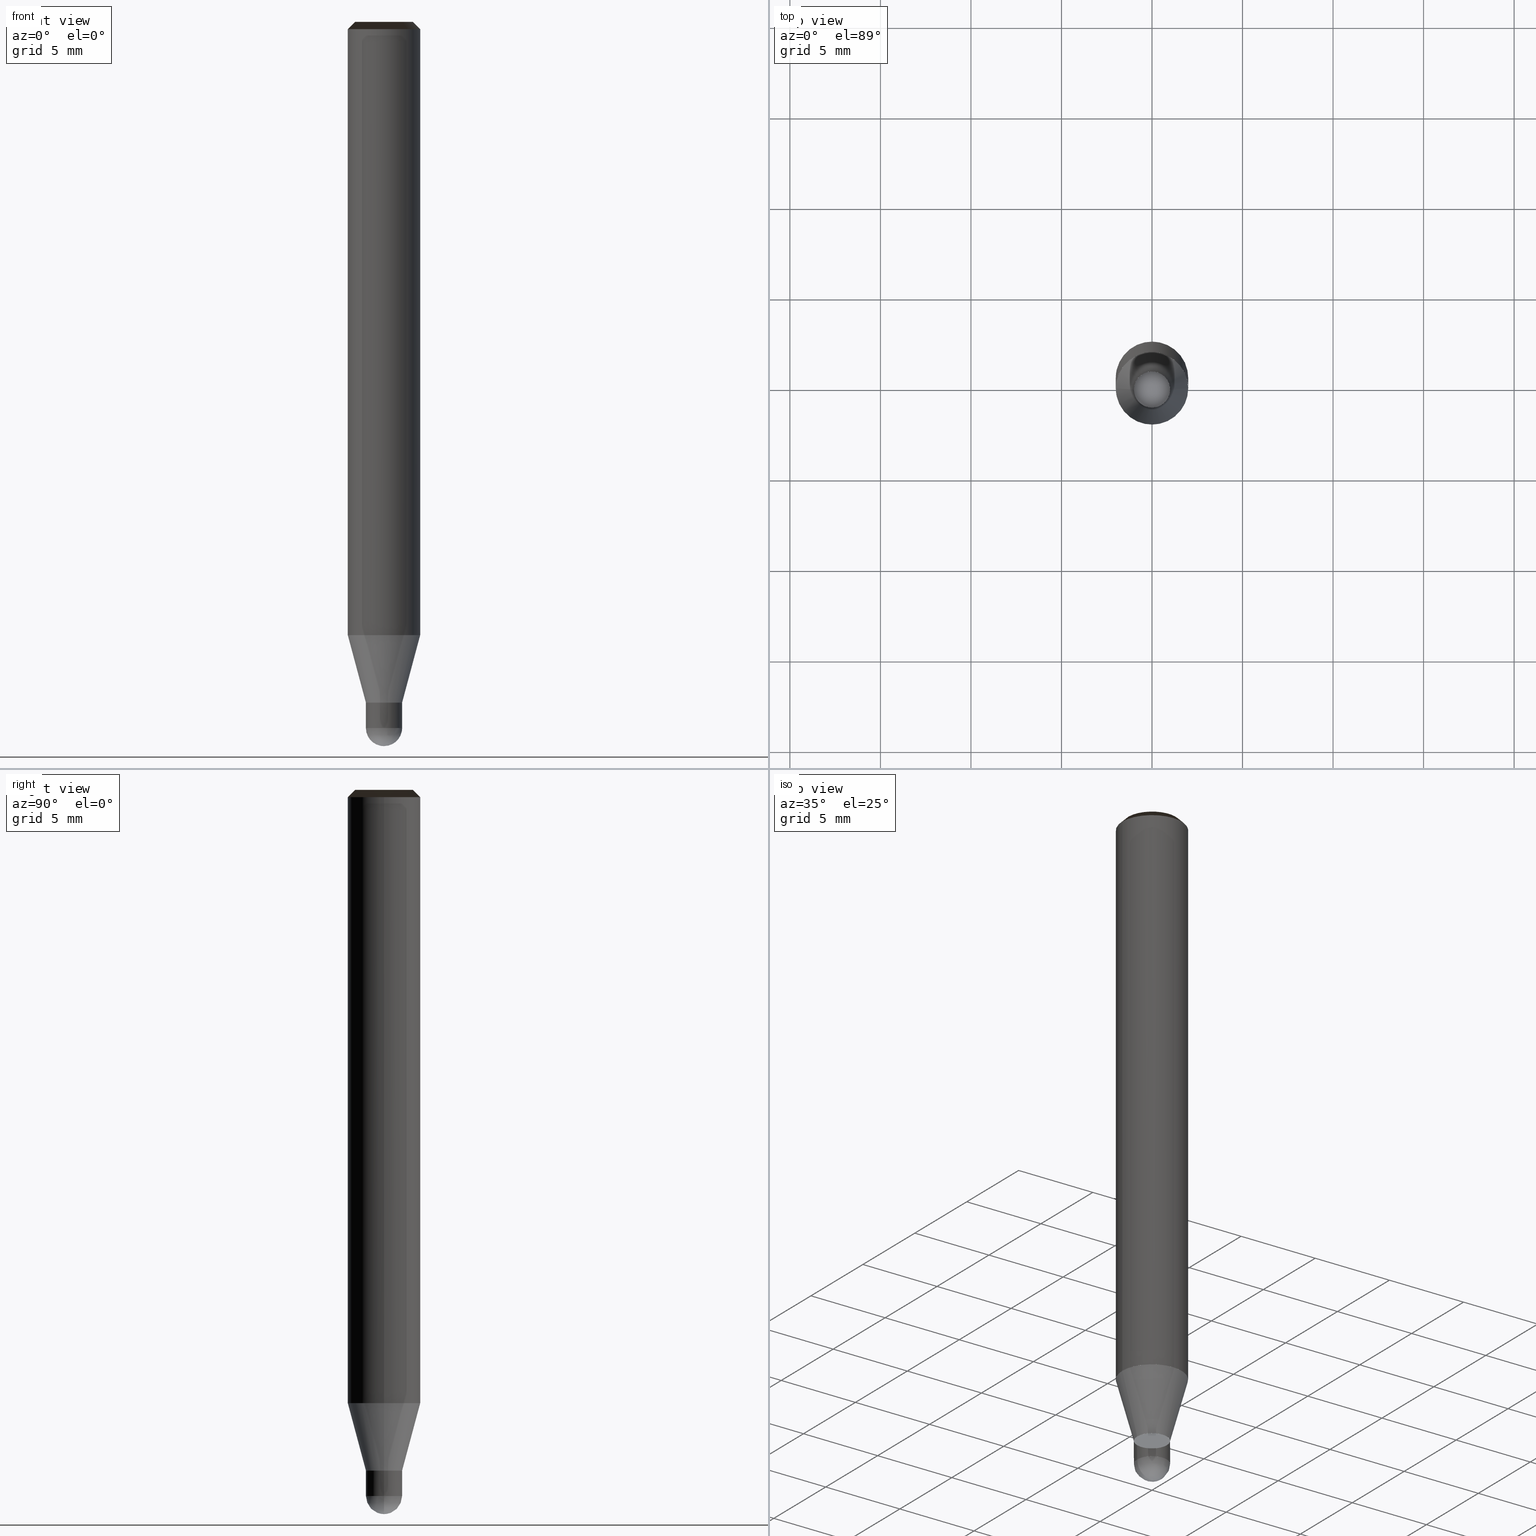
[diagram: canonical four-view strip — front | top / right | iso, engineering-drawing reading convention]
A machine part, canonical four-view strip (front | top / right | iso — engineering-drawing reading convention). The complete STEP part file that produces these views, byte-faithful:
ISO-10303-21;
HEADER;
/* Generated by ISBE GmbH (www.isbe.de) */
/* OPTION: using custom schema-name function */

FILE_DESCRIPTION(
/* description */ (''),
/* implementation_level */ '2;1');

FILE_NAME(
/*name*/ 'SHBS-4020-S04',
/*time_stamp*/'2023-1-12T12:8:47',
/*author*/ ('ISBE GmbH'),
/*organization*/ ('ISBE GmbH'),
/*preprocessor_version*/ 'STEP IO v1.0',
/*originating_system*/ '',
/*authorisation*/ '');

FILE_SCHEMA (('AUTOMOTIVE_DESIGN'));
ENDSEC;

DATA;
#10=SHAPE_DEFINITION_REPRESENTATION(#11,#57);
#11=PRODUCT_DEFINITION_SHAPE('Document','',#13);
#12=PRODUCT_DEFINITION_CONTEXT('3D Mechanical Parts',#17,'design');
#13=PRODUCT_DEFINITION('A','First version',#14,#12);
#14=PRODUCT_DEFINITION_FORMATION_WITH_SPECIFIED_SOURCE('A','First version',#19,.MADE.);
#15=PRODUCT_RELATED_PRODUCT_CATEGORY('tool','tool',(#19));
#16=APPLICATION_PROTOCOL_DEFINITION('Draft International Standard', 'automotive_design',1999,#17);
#17=APPLICATION_CONTEXT('data for automotive mechanical design processes');
#18=PRODUCT_CONTEXT('3D Mechanical Parts',#17,'mechanical');
#19=PRODUCT('Document','Document','ISBE converted to STEP',(#18));
#20=(
LENGTH_UNIT()
NAMED_UNIT(*)
SI_UNIT(.MILLI.,.METRE.)
);
#21=(
NAMED_UNIT(*)
PLANE_ANGLE_UNIT()
SI_UNIT($,.RADIAN.)
);
#22=DIMENSIONAL_EXPONENTS(0.,0.,0.,0.,0.,0.,0.);
#23=PLANE_ANGLE_MEASURE_WITH_UNIT(PLANE_ANGLE_MEASURE(0.01745329252),#21);
#24=(
CONVERSION_BASED_UNIT('DEGREES',#23)
NAMED_UNIT(#22)
PLANE_ANGLE_UNIT()
);
#25=(
NAMED_UNIT(*)
SI_UNIT($,.STERADIAN.)
SOLID_ANGLE_UNIT()
);
#26=UNCERTAINTY_MEASURE_WITH_UNIT(LENGTH_MEASURE(0.001),#20, 'DISTANCE_ACCURACY_VALUE', 'Maximum model space distance between geometric entities at asserted connectivities');
#27=(
GEOMETRIC_REPRESENTATION_CONTEXT(3)
GLOBAL_UNCERTAINTY_ASSIGNED_CONTEXT((#26))
GLOBAL_UNIT_ASSIGNED_CONTEXT((#25,#24,#20))
REPRESENTATION_CONTEXT('ID1','3D')
);
#28=CARTESIAN_POINT('',(0.0,0.0,0.0));
#29=DIRECTION('',(1.0,0.0,0.0));
#30=DIRECTION('',(0.0,0.0,1.0));
#31=AXIS2_PLACEMENT_3D('',#28,#30,#29);
#32=CARTESIAN_POINT('',(0.0,0.0,0.0));
#33=DIRECTION('',(1.0,0.0,0.0));
#34=DIRECTION('',(0.0,0.0,1.0));
#35=AXIS2_PLACEMENT_3D('',#32,#34,#33);
#36=CARTESIAN_POINT('',(0.0,0.0,0.0));
#37=DIRECTION('',(1.0,0.0,0.0));
#38=DIRECTION('',(0.0,0.0,1.0));
#39=AXIS2_PLACEMENT_3D('',#36,#38,#37);
#40=CARTESIAN_POINT('',(0.0,0.0,0.0));
#41=DIRECTION('',(0.0,0.0,1.0));
#42=DIRECTION('',(1.0,0.0,0.0));
#43=AXIS2_PLACEMENT_3D('MCS',#40,#42,#41);
#44=CARTESIAN_POINT('',(0.0,0.0,33.867949192431));
#45=DIRECTION('',(0.0,0.0,1.0));
#46=DIRECTION('',(1.0,0.0,0.0));
#47=AXIS2_PLACEMENT_3D('PCS',#44,#46,#45);
#48=CARTESIAN_POINT('',(0.0,0.0,-6.132050807569));
#49=DIRECTION('',(0.0,0.0,1.0));
#50=DIRECTION('',(1.0,0.0,0.0));
#51=AXIS2_PLACEMENT_3D('CIP',#48,#50,#49);
#52=CARTESIAN_POINT('',(0.0,-1.0,-6.132050807569));
#53=DIRECTION('',(0.0,0.0,1.0));
#54=DIRECTION('',(1.0,0.0,0.0));
#55=AXIS2_PLACEMENT_3D('CRP',#52,#54,#53);
#57=SHAPE_REPRESENTATION('Document',(#31,#35,#39,#43,#47,#51,#55),#27);
#58=DIRECTION('',(1.0,0.0,0.0));
#59=DIRECTION('',(0.0,0.0,1.0));
#60=CARTESIAN_POINT('',(-0.009907476718,0.00135716804,-6.131890508501));
#61=CARTESIAN_POINT('',(-0.014034398226,-0.028815608466,-6.13153702377));
#62=CARTESIAN_POINT('',(-0.018429216791,-0.061362505301,-6.129996200319));
#63=CARTESIAN_POINT('',(-0.022628302979,-0.093318708782,-6.127429920518));
#64=CARTESIAN_POINT('',(-0.026628419541,-0.125073961132,-6.123840821392));
#65=CARTESIAN_POINT('',(-0.030381089132,-0.156681574915,-6.119232590983));
#66=CARTESIAN_POINT('',(-0.033831620805,-0.188141018283,-6.11360996456));
#67=CARTESIAN_POINT('',(-0.036924614371,-0.219435956266,-6.106978719751));
#68=CARTESIAN_POINT('',(-0.039605516581,-0.250543511181,-6.099345670608));
#69=CARTESIAN_POINT('',(-0.041821313438,-0.281437249305,-6.090718660606));
#70=CARTESIAN_POINT('',(-0.043520963393,-0.31208831252,-6.08110655458));
#71=CARTESIAN_POINT('',(-0.044655734343,-0.342465890573,-6.070519229619));
#72=CARTESIAN_POINT('',(-0.04517949786,-0.372537431575,-6.058967564915));
#73=CARTESIAN_POINT('',(-0.045049000473,-0.402268744033,-6.046463430585));
#74=CARTESIAN_POINT('',(-0.044224119816,-0.431624056671,-6.033019675471));
#75=CARTESIAN_POINT('',(-0.042668108559,-0.460566067412,-6.018650113942));
#76=CARTESIAN_POINT('',(-0.040347826857,-0.489055997522,-6.003369511692));
#77=CARTESIAN_POINT('',(-0.03723396296,-0.517053659577,-5.987193570574));
#78=CARTESIAN_POINT('',(-0.033301241026,-0.544517544056,-5.970138912461));
#79=CARTESIAN_POINT('',(-0.028528614874,-0.571404927283,-5.952223062166));
#80=CARTESIAN_POINT('',(-0.022899446139,-0.597672002064,-5.933464429437));
#81=CARTESIAN_POINT('',(-0.016401665247,-0.623274031545,-5.913882290037));
#82=CARTESIAN_POINT('',(-0.009027913465,-0.648165526129,-5.893496765938));
#83=CARTESIAN_POINT('',(-0.000775664342,-0.672300442801,-5.872328804644));
#84=CARTESIAN_POINT('',(0.008352677199,-0.695632405799,-5.850400157667));
#85=CARTESIAN_POINT('',(0.018349699771,-0.718114947139,-5.827733358172));
#86=CARTESIAN_POINT('',(0.029202936016,-0.739701765228,-5.80435169783));
#87=CARTESIAN_POINT('',(0.040894840143,-0.760346999446,-5.780279202877));
#88=CARTESIAN_POINT('',(0.053402793828,-0.780005518307,-5.755540609428));
#89=CARTESIAN_POINT('',(0.066699141595,-0.798633218584,-5.73016133806));
#90=CARTESIAN_POINT('',(0.0807512566,-0.816187332521,-5.704167467691));
#91=CARTESIAN_POINT('',(0.095521637495,-0.832626740101,-5.677585708779));
#92=CARTESIAN_POINT('',(0.110968036776,-0.847912283161,-5.650443375879));
#93=CARTESIAN_POINT('',(0.127043620736,-0.862007078037,-5.622768359573));
#94=CARTESIAN_POINT('',(0.143697160847,-0.874876823345,-5.59458909781));
#95=CARTESIAN_POINT('',(0.160873256047,-0.886490099447,-5.565934546686));
#96=CARTESIAN_POINT('',(0.178512585107,-0.896818656189,-5.536834150691));
#97=CARTESIAN_POINT('',(0.196552187915,-0.905837685501,-5.507317812448));
#98=CARTESIAN_POINT('',(0.214925774146,-0.913526075595,-5.47741586199));
#99=CARTESIAN_POINT('',(0.233564057514,-0.91986664358,-5.447159025593));
#100=CARTESIAN_POINT('',(0.252395113439,-0.924846343539,-5.4165783942));
#101=CARTESIAN_POINT('',(0.271344757688,-0.928456447302,-5.385705391478));
#102=CARTESIAN_POINT('',(0.290336943273,-0.930692695428,-5.354571741525));
#103=CARTESIAN_POINT('',(0.309294172622,-0.931555416202,-5.32320943627));
#104=CARTESIAN_POINT('',(0.32813792185,-0.931049610789,-5.291650702602));
#105=CARTESIAN_POINT('',(0.346789073751,-0.929185003025,-5.259927969253));
#106=CARTESIAN_POINT('',(0.365168356017,-0.925976052746,-5.228073833477));
#107=CARTESIAN_POINT('',(0.383196781062,-0.921441931917,-5.19612102755));
#108=CARTESIAN_POINT('',(0.400796083826,-0.915606463261,-5.164102385141));
#109=CARTESIAN_POINT('',(0.417889153871,-0.908498021504,-5.132050807569));
#110=CARTESIAN_POINT('',(0.438180173706,-0.898887164983,-5.054273029791));
#111=CARTESIAN_POINT('',(0.458250309523,-0.888823184791,-4.976495252013));
#112=CARTESIAN_POINT('',(0.478089444086,-0.878311154121,-4.898717474236));
#113=CARTESIAN_POINT('',(0.497687576605,-0.867356372025,-4.820939696458));
#114=CARTESIAN_POINT('',(0.517034827779,-0.855964360744,-4.74316191868));
#115=CARTESIAN_POINT('',(0.536121444773,-0.844140862922,-4.665384140902));
#116=CARTESIAN_POINT('',(0.554937806137,-0.831891838715,-4.587606363124));
#117=CARTESIAN_POINT('',(0.573474426655,-0.819223462782,-4.509828585347));
#118=CARTESIAN_POINT('',(0.591721962128,-0.806142121177,-4.432050807569));
#119=CARTESIAN_POINT('',(0.609671214081,-0.792654408126,-4.354273029791));
#120=CARTESIAN_POINT('',(0.627313134402,-0.778767122705,-4.276495252013));
#121=CARTESIAN_POINT('',(0.644638829907,-0.764487265412,-4.198717474236));
#122=CARTESIAN_POINT('',(0.661639566813,-0.749822034638,-4.120939696458));
#123=CARTESIAN_POINT('',(0.678306775151,-0.734778823038,-4.04316191868));
#124=CARTESIAN_POINT('',(0.69463205308,-0.719365213806,-3.965384140902));
#125=CARTESIAN_POINT('',(0.710607171125,-0.703588976851,-3.887606363124));
#126=CARTESIAN_POINT('',(0.726224076323,-0.68745806488,-3.809828585347));
#127=CARTESIAN_POINT('',(0.741474896287,-0.670980609389,-3.732050807569));
#128=CARTESIAN_POINT('',(-0.00135716804,-0.009907476718,-6.131890508501));
#129=CARTESIAN_POINT('',(0.028815608466,-0.014034398226,-6.13153702377));
#130=CARTESIAN_POINT('',(0.061362505301,-0.018429216791,-6.129996200319));
#131=CARTESIAN_POINT('',(0.093318708782,-0.022628302979,-6.127429920518));
#132=CARTESIAN_POINT('',(0.125073961132,-0.026628419541,-6.123840821392));
#133=CARTESIAN_POINT('',(0.156681574915,-0.030381089132,-6.119232590983));
#134=CARTESIAN_POINT('',(0.188141018283,-0.033831620805,-6.11360996456));
#135=CARTESIAN_POINT('',(0.219435956266,-0.036924614371,-6.106978719751));
#136=CARTESIAN_POINT('',(0.250543511181,-0.039605516581,-6.099345670608));
#137=CARTESIAN_POINT('',(0.281437249305,-0.041821313438,-6.090718660606));
#138=CARTESIAN_POINT('',(0.31208831252,-0.043520963393,-6.08110655458));
#139=CARTESIAN_POINT('',(0.342465890573,-0.044655734343,-6.070519229619));
#140=CARTESIAN_POINT('',(0.372537431575,-0.04517949786,-6.058967564915));
#141=CARTESIAN_POINT('',(0.402268744033,-0.045049000473,-6.046463430585));
#142=CARTESIAN_POINT('',(0.431624056671,-0.044224119816,-6.033019675471));
#143=CARTESIAN_POINT('',(0.460566067412,-0.042668108559,-6.018650113942));
#144=CARTESIAN_POINT('',(0.489055997522,-0.040347826857,-6.003369511692));
#145=CARTESIAN_POINT('',(0.517053659577,-0.03723396296,-5.987193570574));
#146=CARTESIAN_POINT('',(0.544517544056,-0.033301241026,-5.970138912461));
#147=CARTESIAN_POINT('',(0.571404927283,-0.028528614874,-5.952223062166));
#148=CARTESIAN_POINT('',(0.597672002064,-0.022899446139,-5.933464429437));
#149=CARTESIAN_POINT('',(0.623274031545,-0.016401665247,-5.913882290037));
#150=CARTESIAN_POINT('',(0.648165526129,-0.009027913465,-5.893496765938));
#151=CARTESIAN_POINT('',(0.672300442801,-0.000775664342,-5.872328804644));
#152=CARTESIAN_POINT('',(0.695632405799,0.008352677199,-5.850400157667));
#153=CARTESIAN_POINT('',(0.718114947139,0.018349699771,-5.827733358172));
#154=CARTESIAN_POINT('',(0.739701765228,0.029202936016,-5.80435169783));
#155=CARTESIAN_POINT('',(0.760346999446,0.040894840143,-5.780279202877));
#156=CARTESIAN_POINT('',(0.780005518307,0.053402793828,-5.755540609428));
#157=CARTESIAN_POINT('',(0.798633218584,0.066699141595,-5.73016133806));
#158=CARTESIAN_POINT('',(0.816187332521,0.0807512566,-5.704167467691));
#159=CARTESIAN_POINT('',(0.832626740101,0.095521637495,-5.677585708779));
#160=CARTESIAN_POINT('',(0.847912283161,0.110968036776,-5.650443375879));
#161=CARTESIAN_POINT('',(0.862007078037,0.127043620736,-5.622768359573));
#162=CARTESIAN_POINT('',(0.874876823345,0.143697160847,-5.59458909781));
#163=CARTESIAN_POINT('',(0.886490099447,0.160873256047,-5.565934546686));
#164=CARTESIAN_POINT('',(0.896818656189,0.178512585107,-5.536834150691));
#165=CARTESIAN_POINT('',(0.905837685501,0.196552187915,-5.507317812448));
#166=CARTESIAN_POINT('',(0.913526075595,0.214925774146,-5.47741586199));
#167=CARTESIAN_POINT('',(0.91986664358,0.233564057514,-5.447159025593));
#168=CARTESIAN_POINT('',(0.924846343539,0.252395113439,-5.4165783942));
#169=CARTESIAN_POINT('',(0.928456447302,0.271344757688,-5.385705391478));
#170=CARTESIAN_POINT('',(0.930692695428,0.290336943273,-5.354571741525));
#171=CARTESIAN_POINT('',(0.931555416202,0.309294172622,-5.32320943627));
#172=CARTESIAN_POINT('',(0.931049610789,0.32813792185,-5.291650702602));
#173=CARTESIAN_POINT('',(0.929185003025,0.346789073751,-5.259927969253));
#174=CARTESIAN_POINT('',(0.925976052746,0.365168356017,-5.228073833477));
#175=CARTESIAN_POINT('',(0.921441931917,0.383196781062,-5.19612102755));
#176=CARTESIAN_POINT('',(0.915606463261,0.400796083826,-5.164102385141));
#177=CARTESIAN_POINT('',(0.908498021504,0.417889153871,-5.132050807569));
#178=CARTESIAN_POINT('',(0.898887164983,0.438180173706,-5.054273029791));
#179=CARTESIAN_POINT('',(0.888823184791,0.458250309523,-4.976495252013));
#180=CARTESIAN_POINT('',(0.878311154121,0.478089444086,-4.898717474236));
#181=CARTESIAN_POINT('',(0.867356372025,0.497687576605,-4.820939696458));
#182=CARTESIAN_POINT('',(0.855964360744,0.517034827779,-4.74316191868));
#183=CARTESIAN_POINT('',(0.844140862922,0.536121444773,-4.665384140902));
#184=CARTESIAN_POINT('',(0.831891838715,0.554937806137,-4.587606363124));
#185=CARTESIAN_POINT('',(0.819223462782,0.573474426655,-4.509828585347));
#186=CARTESIAN_POINT('',(0.806142121177,0.591721962128,-4.432050807569));
#187=CARTESIAN_POINT('',(0.792654408126,0.609671214081,-4.354273029791));
#188=CARTESIAN_POINT('',(0.778767122705,0.627313134402,-4.276495252013));
#189=CARTESIAN_POINT('',(0.764487265412,0.644638829907,-4.198717474236));
#190=CARTESIAN_POINT('',(0.749822034638,0.661639566813,-4.120939696458));
#191=CARTESIAN_POINT('',(0.734778823038,0.678306775151,-4.04316191868));
#192=CARTESIAN_POINT('',(0.719365213806,0.69463205308,-3.965384140902));
#193=CARTESIAN_POINT('',(0.703588976851,0.710607171125,-3.887606363124));
#194=CARTESIAN_POINT('',(0.68745806488,0.726224076323,-3.809828585347));
#195=CARTESIAN_POINT('',(0.670980609389,0.741474896287,-3.732050807569));
#196=CARTESIAN_POINT('',(0.009907476718,-0.00135716804,-6.131890508501));
#197=CARTESIAN_POINT('',(0.014034398226,0.028815608466,-6.13153702377));
#198=CARTESIAN_POINT('',(0.018429216791,0.061362505301,-6.129996200319));
#199=CARTESIAN_POINT('',(0.022628302979,0.093318708782,-6.127429920518));
#200=CARTESIAN_POINT('',(0.026628419541,0.125073961132,-6.123840821392));
#201=CARTESIAN_POINT('',(0.030381089132,0.156681574915,-6.119232590983));
#202=CARTESIAN_POINT('',(0.033831620805,0.188141018283,-6.11360996456));
#203=CARTESIAN_POINT('',(0.036924614371,0.219435956266,-6.106978719751));
#204=CARTESIAN_POINT('',(0.039605516581,0.250543511181,-6.099345670608));
#205=CARTESIAN_POINT('',(0.041821313438,0.281437249305,-6.090718660606));
#206=CARTESIAN_POINT('',(0.043520963393,0.31208831252,-6.08110655458));
#207=CARTESIAN_POINT('',(0.044655734343,0.342465890573,-6.070519229619));
#208=CARTESIAN_POINT('',(0.04517949786,0.372537431575,-6.058967564915));
#209=CARTESIAN_POINT('',(0.045049000473,0.402268744033,-6.046463430585));
#210=CARTESIAN_POINT('',(0.044224119816,0.431624056671,-6.033019675471));
#211=CARTESIAN_POINT('',(0.042668108559,0.460566067412,-6.018650113942));
#212=CARTESIAN_POINT('',(0.040347826858,0.489055997522,-6.003369511692));
#213=CARTESIAN_POINT('',(0.03723396296,0.517053659577,-5.987193570574));
#214=CARTESIAN_POINT('',(0.033301241026,0.544517544056,-5.970138912461));
#215=CARTESIAN_POINT('',(0.028528614874,0.571404927283,-5.952223062166));
#216=CARTESIAN_POINT('',(0.022899446139,0.597672002064,-5.933464429437));
#217=CARTESIAN_POINT('',(0.016401665247,0.623274031545,-5.913882290037));
#218=CARTESIAN_POINT('',(0.009027913465,0.648165526129,-5.893496765938));
#219=CARTESIAN_POINT('',(0.000775664342,0.672300442801,-5.872328804644));
#220=CARTESIAN_POINT('',(-0.008352677199,0.695632405799,-5.850400157667));
#221=CARTESIAN_POINT('',(-0.018349699771,0.718114947139,-5.827733358172));
#222=CARTESIAN_POINT('',(-0.029202936016,0.739701765228,-5.80435169783));
#223=CARTESIAN_POINT('',(-0.040894840143,0.760346999446,-5.780279202877));
#224=CARTESIAN_POINT('',(-0.053402793828,0.780005518307,-5.755540609428));
#225=CARTESIAN_POINT('',(-0.066699141595,0.798633218584,-5.73016133806));
#226=CARTESIAN_POINT('',(-0.0807512566,0.816187332521,-5.704167467691));
#227=CARTESIAN_POINT('',(-0.095521637495,0.832626740101,-5.677585708779));
#228=CARTESIAN_POINT('',(-0.110968036776,0.847912283161,-5.650443375879));
#229=CARTESIAN_POINT('',(-0.127043620736,0.862007078037,-5.622768359573));
#230=CARTESIAN_POINT('',(-0.143697160847,0.874876823345,-5.59458909781));
#231=CARTESIAN_POINT('',(-0.160873256047,0.886490099447,-5.565934546686));
#232=CARTESIAN_POINT('',(-0.178512585107,0.896818656189,-5.536834150691));
#233=CARTESIAN_POINT('',(-0.196552187915,0.905837685501,-5.507317812448));
#234=CARTESIAN_POINT('',(-0.214925774146,0.913526075595,-5.47741586199));
#235=CARTESIAN_POINT('',(-0.233564057514,0.91986664358,-5.447159025593));
#236=CARTESIAN_POINT('',(-0.252395113439,0.924846343539,-5.4165783942));
#237=CARTESIAN_POINT('',(-0.271344757688,0.928456447302,-5.385705391478));
#238=CARTESIAN_POINT('',(-0.290336943273,0.930692695428,-5.354571741525));
#239=CARTESIAN_POINT('',(-0.309294172622,0.931555416202,-5.32320943627));
#240=CARTESIAN_POINT('',(-0.32813792185,0.931049610789,-5.291650702602));
#241=CARTESIAN_POINT('',(-0.346789073751,0.929185003025,-5.259927969253));
#242=CARTESIAN_POINT('',(-0.365168356017,0.925976052746,-5.228073833477));
#243=CARTESIAN_POINT('',(-0.383196781062,0.921441931917,-5.19612102755));
#244=CARTESIAN_POINT('',(-0.400796083826,0.915606463261,-5.164102385141));
#245=CARTESIAN_POINT('',(-0.417889153871,0.908498021504,-5.132050807569));
#246=CARTESIAN_POINT('',(-0.438180173706,0.898887164983,-5.054273029791));
#247=CARTESIAN_POINT('',(-0.458250309523,0.888823184791,-4.976495252013));
#248=CARTESIAN_POINT('',(-0.478089444086,0.878311154121,-4.898717474236));
#249=CARTESIAN_POINT('',(-0.497687576605,0.867356372025,-4.820939696458));
#250=CARTESIAN_POINT('',(-0.517034827779,0.855964360744,-4.74316191868));
#251=CARTESIAN_POINT('',(-0.536121444773,0.844140862922,-4.665384140902));
#252=CARTESIAN_POINT('',(-0.554937806137,0.831891838715,-4.587606363124));
#253=CARTESIAN_POINT('',(-0.573474426655,0.819223462782,-4.509828585347));
#254=CARTESIAN_POINT('',(-0.591721962128,0.806142121177,-4.432050807569));
#255=CARTESIAN_POINT('',(-0.609671214081,0.792654408126,-4.354273029791));
#256=CARTESIAN_POINT('',(-0.627313134402,0.778767122705,-4.276495252013));
#257=CARTESIAN_POINT('',(-0.644638829907,0.764487265412,-4.198717474236));
#258=CARTESIAN_POINT('',(-0.661639566813,0.749822034638,-4.120939696458));
#259=CARTESIAN_POINT('',(-0.678306775151,0.734778823038,-4.04316191868));
#260=CARTESIAN_POINT('',(-0.69463205308,0.719365213806,-3.965384140902));
#261=CARTESIAN_POINT('',(-0.710607171125,0.703588976851,-3.887606363124));
#262=CARTESIAN_POINT('',(-0.726224076323,0.68745806488,-3.809828585347));
#263=CARTESIAN_POINT('',(-0.741474896287,0.670980609389,-3.732050807569));
#264=CARTESIAN_POINT('',(0.00135716804,0.009907476718,-6.131890508501));
#265=CARTESIAN_POINT('',(-0.028815608466,0.014034398226,-6.13153702377));
#266=CARTESIAN_POINT('',(-0.061362505301,0.018429216791,-6.129996200319));
#267=CARTESIAN_POINT('',(-0.093318708782,0.022628302979,-6.127429920518));
#268=CARTESIAN_POINT('',(-0.125073961132,0.026628419541,-6.123840821392));
#269=CARTESIAN_POINT('',(-0.156681574915,0.030381089132,-6.119232590983));
#270=CARTESIAN_POINT('',(-0.188141018283,0.033831620805,-6.11360996456));
#271=CARTESIAN_POINT('',(-0.219435956266,0.036924614371,-6.106978719751));
#272=CARTESIAN_POINT('',(-0.250543511181,0.039605516581,-6.099345670608));
#273=CARTESIAN_POINT('',(-0.281437249305,0.041821313438,-6.090718660606));
#274=CARTESIAN_POINT('',(-0.31208831252,0.043520963393,-6.08110655458));
#275=CARTESIAN_POINT('',(-0.342465890573,0.044655734343,-6.070519229619));
#276=CARTESIAN_POINT('',(-0.372537431575,0.04517949786,-6.058967564915));
#277=CARTESIAN_POINT('',(-0.402268744033,0.045049000473,-6.046463430585));
#278=CARTESIAN_POINT('',(-0.431624056671,0.044224119816,-6.033019675471));
#279=CARTESIAN_POINT('',(-0.460566067412,0.042668108559,-6.018650113942));
#280=CARTESIAN_POINT('',(-0.489055997522,0.040347826857,-6.003369511692));
#281=CARTESIAN_POINT('',(-0.517053659577,0.03723396296,-5.987193570574));
#282=CARTESIAN_POINT('',(-0.544517544056,0.033301241026,-5.970138912461));
#283=CARTESIAN_POINT('',(-0.571404927283,0.028528614874,-5.952223062166));
#284=CARTESIAN_POINT('',(-0.597672002064,0.022899446139,-5.933464429437));
#285=CARTESIAN_POINT('',(-0.623274031545,0.016401665247,-5.913882290037));
#286=CARTESIAN_POINT('',(-0.648165526129,0.009027913465,-5.893496765938));
#287=CARTESIAN_POINT('',(-0.672300442801,0.000775664342,-5.872328804644));
#288=CARTESIAN_POINT('',(-0.695632405799,-0.008352677199,-5.850400157667));
#289=CARTESIAN_POINT('',(-0.718114947139,-0.018349699771,-5.827733358172));
#290=CARTESIAN_POINT('',(-0.739701765228,-0.029202936016,-5.80435169783));
#291=CARTESIAN_POINT('',(-0.760346999446,-0.040894840143,-5.780279202877));
#292=CARTESIAN_POINT('',(-0.780005518307,-0.053402793828,-5.755540609428));
#293=CARTESIAN_POINT('',(-0.798633218584,-0.066699141595,-5.73016133806));
#294=CARTESIAN_POINT('',(-0.816187332521,-0.0807512566,-5.704167467691));
#295=CARTESIAN_POINT('',(-0.832626740101,-0.095521637495,-5.677585708779));
#296=CARTESIAN_POINT('',(-0.847912283161,-0.110968036776,-5.650443375879));
#297=CARTESIAN_POINT('',(-0.862007078037,-0.127043620736,-5.622768359573));
#298=CARTESIAN_POINT('',(-0.874876823345,-0.143697160847,-5.59458909781));
#299=CARTESIAN_POINT('',(-0.886490099447,-0.160873256047,-5.565934546686));
#300=CARTESIAN_POINT('',(-0.896818656189,-0.178512585107,-5.536834150691));
#301=CARTESIAN_POINT('',(-0.905837685501,-0.196552187915,-5.507317812448));
#302=CARTESIAN_POINT('',(-0.913526075595,-0.214925774146,-5.47741586199));
#303=CARTESIAN_POINT('',(-0.91986664358,-0.233564057514,-5.447159025593));
#304=CARTESIAN_POINT('',(-0.924846343539,-0.252395113439,-5.4165783942));
#305=CARTESIAN_POINT('',(-0.928456447302,-0.271344757688,-5.385705391478));
#306=CARTESIAN_POINT('',(-0.930692695428,-0.290336943273,-5.354571741525));
#307=CARTESIAN_POINT('',(-0.931555416202,-0.309294172622,-5.32320943627));
#308=CARTESIAN_POINT('',(-0.931049610789,-0.32813792185,-5.291650702602));
#309=CARTESIAN_POINT('',(-0.929185003025,-0.346789073751,-5.259927969253));
#310=CARTESIAN_POINT('',(-0.925976052746,-0.365168356017,-5.228073833477));
#311=CARTESIAN_POINT('',(-0.921441931917,-0.383196781062,-5.19612102755));
#312=CARTESIAN_POINT('',(-0.915606463261,-0.400796083826,-5.164102385141));
#313=CARTESIAN_POINT('',(-0.908498021504,-0.417889153871,-5.132050807569));
#314=CARTESIAN_POINT('',(-0.898887164983,-0.438180173706,-5.054273029791));
#315=CARTESIAN_POINT('',(-0.888823184791,-0.458250309523,-4.976495252013));
#316=CARTESIAN_POINT('',(-0.878311154121,-0.478089444086,-4.898717474236));
#317=CARTESIAN_POINT('',(-0.867356372025,-0.497687576605,-4.820939696458));
#318=CARTESIAN_POINT('',(-0.855964360744,-0.517034827779,-4.74316191868));
#319=CARTESIAN_POINT('',(-0.844140862922,-0.536121444773,-4.665384140902));
#320=CARTESIAN_POINT('',(-0.831891838715,-0.554937806137,-4.587606363124));
#321=CARTESIAN_POINT('',(-0.819223462782,-0.573474426655,-4.509828585347));
#322=CARTESIAN_POINT('',(-0.806142121177,-0.591721962128,-4.432050807569));
#323=CARTESIAN_POINT('',(-0.792654408126,-0.609671214081,-4.354273029791));
#324=CARTESIAN_POINT('',(-0.778767122705,-0.627313134402,-4.276495252013));
#325=CARTESIAN_POINT('',(-0.764487265412,-0.644638829907,-4.198717474236));
#326=CARTESIAN_POINT('',(-0.749822034638,-0.661639566813,-4.120939696458));
#327=CARTESIAN_POINT('',(-0.734778823038,-0.678306775151,-4.04316191868));
#328=CARTESIAN_POINT('',(-0.719365213806,-0.69463205308,-3.965384140902));
#329=CARTESIAN_POINT('',(-0.703588976851,-0.710607171125,-3.887606363124));
#330=CARTESIAN_POINT('',(-0.68745806488,-0.726224076323,-3.809828585347));
#331=CARTESIAN_POINT('',(-0.670980609389,-0.741474896287,-3.732050807569));
#332=CARTESIAN_POINT('',(0.0,0.0,-6.132050807569));
#333=CARTESIAN_POINT('',(1.0,0.0,-6.132050807569));
#334=CARTESIAN_POINT('',(1.0,1.0,-6.132050807569));
#335=CARTESIAN_POINT('',(0.0,1.0,-6.132050807569));
#336=CARTESIAN_POINT('',(-1.0,1.0,-6.132050807569));
#337=CARTESIAN_POINT('',(-1.0,0.0,-6.132050807569));
#338=CARTESIAN_POINT('',(1.0,0.0,-5.132050807569));
#339=CARTESIAN_POINT('',(1.0,1.0,-5.132050807569));
#340=CARTESIAN_POINT('',(0.0,1.0,-5.132050807569));
#341=CARTESIAN_POINT('',(-1.0,1.0,-5.132050807569));
#342=CARTESIAN_POINT('',(-1.0,0.0,-5.132050807569));
#343=CARTESIAN_POINT('',(1.0,0.0,-3.732050807569));
#344=CARTESIAN_POINT('',(1.0,1.0,-3.732050807569));
#345=CARTESIAN_POINT('',(0.0,1.0,-3.732050807569));
#346=CARTESIAN_POINT('',(-1.0,1.0,-3.732050807569));
#347=CARTESIAN_POINT('',(-1.0,0.0,-3.732050807569));
#348=CARTESIAN_POINT('',(0.0,0.0,-3.732050807569));
#349=CARTESIAN_POINT('',(-1.0,-1.0,-6.132050807569));
#350=CARTESIAN_POINT('',(0.0,-1.0,-6.132050807569));
#351=CARTESIAN_POINT('',(1.0,-1.0,-6.132050807569));
#352=CARTESIAN_POINT('',(-1.0,-1.0,-5.132050807569));
#353=CARTESIAN_POINT('',(0.0,-1.0,-5.132050807569));
#354=CARTESIAN_POINT('',(1.0,-1.0,-5.132050807569));
#355=CARTESIAN_POINT('',(-1.0,-1.0,-3.732050807569));
#356=CARTESIAN_POINT('',(0.0,-1.0,-3.732050807569));
#357=CARTESIAN_POINT('',(1.0,-1.0,-3.732050807569));
#358=CARTESIAN_POINT('',(2.0,0.0,0.0));
#359=CARTESIAN_POINT('',(2.0,2.0,0.0));
#360=CARTESIAN_POINT('',(0.0,2.0,0.0));
#361=CARTESIAN_POINT('',(-2.0,2.0,0.0));
#362=CARTESIAN_POINT('',(-2.0,0.0,0.0));
#363=CARTESIAN_POINT('',(2.0,0.0,33.467949192431));
#364=CARTESIAN_POINT('',(2.0,2.0,33.467949192431));
#365=CARTESIAN_POINT('',(0.0,2.0,33.467949192431));
#366=CARTESIAN_POINT('',(-2.0,2.0,33.467949192431));
#367=CARTESIAN_POINT('',(-2.0,0.0,33.467949192431));
#368=CARTESIAN_POINT('',(1.6,0.0,33.867949192431));
#369=CARTESIAN_POINT('',(1.6,1.6,33.867949192431));
#370=CARTESIAN_POINT('',(0.0,1.6,33.867949192431));
#371=CARTESIAN_POINT('',(-1.6,1.6,33.867949192431));
#372=CARTESIAN_POINT('',(-1.6,0.0,33.867949192431));
#373=CARTESIAN_POINT('',(0.0,0.0,33.867949192431));
#374=CARTESIAN_POINT('',(-2.0,-2.0,0.0));
#375=CARTESIAN_POINT('',(0.0,-2.0,0.0));
#376=CARTESIAN_POINT('',(2.0,-2.0,0.0));
#377=CARTESIAN_POINT('',(-2.0,-2.0,33.467949192431));
#378=CARTESIAN_POINT('',(0.0,-2.0,33.467949192431));
#379=CARTESIAN_POINT('',(2.0,-2.0,33.467949192431));
#380=CARTESIAN_POINT('',(-1.6,-1.6,33.867949192431));
#381=CARTESIAN_POINT('',(0.0,-1.6,33.867949192431));
#382=CARTESIAN_POINT('',(1.6,-1.6,33.867949192431));
#383=(
BOUNDED_CURVE()
B_SPLINE_CURVE(1,(#60,#61,#62,#63,#64,#65,#66,#67,#68,#69,#70,#71,#72,#73,#74,#75,#76,#77,#78,#79,#80,#81,#82,#83,#84,#85,#86,#87,#88,#89,#90,#91,#92,#93,#94,#95,#96,#97,#98,#99,#100,#101,#102,#103,#104,#105,#106,#107,#108,#109,#110,#111,#112,#113,#114,#115,#116,#117,#118,#119,#120,#121,#122,#123,#124,#125,#126,#127),.UNSPECIFIED.,.F.,.F.)
B_SPLINE_CURVE_WITH_KNOTS((2,1,1,1,1,1,1,1,1,1,1,1,1,1,1,1,1,1,1,1,1,1,1,1,1,1,1,1,1,1,1,1,1,1,1,1,1,1,1,1,1,1,1,1,1,1,1,1,1,1,1,1,1,1,1,1,1,1,1,1,1,1,1,1,1,1,1,2),
(0.0,0.009750758322,0.020277154321,0.030628906001,0.040940285409,0.051237145743,0.061528315865,0.071817974329,0.082108716023,0.092402582244,0.102701480638,0.113007380148,0.123322408412,0.133648900323,0.143989418501,0.154346755387,0.16472392197,0.175124125965,0.185550741359,0.196007270726,0.206497301593,0.217024458048,0.227592348782,0.238204512787,0.248864363907,0.259575135458,0.270339826043,0.281161147679,0.29204147721,0.302982811889,0.313986729894,0.325054356369,0.33618633547,0.347382808746,0.358643400029,0.369967206924,0.381352798816,0.392798221283,0.404301006664,0.415858190481,0.427466333379,0.439121548176,0.450819531591,0.462555600228,0.474324730322,0.48612160081,0.497940639229,0.509776069988,0.521621964534,0.533472292943,0.559390498891,0.585308704838,0.611226910786,0.637145116734,0.663063322681,0.688981528629,0.714899734576,0.740817940524,0.766736146472,0.792654352419,0.818572558367,0.844490764314,0.870408970262,0.89632717621,0.922245382157,0.948163588105,0.974081794052,1.0),.UNSPECIFIED.)
CURVE()
GEOMETRIC_REPRESENTATION_ITEM()
RATIONAL_B_SPLINE_CURVE((1.0,1.0,1.0,1.0,1.0,1.0,1.0,1.0,1.0,1.0,1.0,1.0,1.0,1.0,1.0,1.0,1.0,1.0,1.0,1.0,1.0,1.0,1.0,1.0,1.0,1.0,1.0,1.0,1.0,1.0,1.0,1.0,1.0,1.0,1.0,1.0,1.0,1.0,1.0,1.0,1.0,1.0,1.0,1.0,1.0,1.0,1.0,1.0,1.0,1.0,1.0,1.0,1.0,1.0,1.0,1.0,1.0,1.0,1.0,1.0,1.0,1.0,1.0,1.0,1.0,1.0,1.0,1.0))
REPRESENTATION_ITEM('')
);
#384=(
BOUNDED_CURVE()
B_SPLINE_CURVE(1,(#128,#129,#130,#131,#132,#133,#134,#135,#136,#137,#138,#139,#140,#141,#142,#143,#144,#145,#146,#147,#148,#149,#150,#151,#152,#153,#154,#155,#156,#157,#158,#159,#160,#161,#162,#163,#164,#165,#166,#167,#168,#169,#170,#171,#172,#173,#174,#175,#176,#177,#178,#179,#180,#181,#182,#183,#184,#185,#186,#187,#188,#189,#190,#191,#192,#193,#194,#195),.UNSPECIFIED.,.F.,.F.)
B_SPLINE_CURVE_WITH_KNOTS((2,1,1,1,1,1,1,1,1,1,1,1,1,1,1,1,1,1,1,1,1,1,1,1,1,1,1,1,1,1,1,1,1,1,1,1,1,1,1,1,1,1,1,1,1,1,1,1,1,1,1,1,1,1,1,1,1,1,1,1,1,1,1,1,1,1,1,2),
(0.0,0.009750758322,0.020277154321,0.030628906001,0.040940285409,0.051237145743,0.061528315865,0.071817974329,0.082108716023,0.092402582244,0.102701480638,0.113007380148,0.123322408412,0.133648900323,0.143989418501,0.154346755387,0.16472392197,0.175124125965,0.185550741359,0.196007270726,0.206497301593,0.217024458048,0.227592348782,0.238204512787,0.248864363907,0.259575135458,0.270339826043,0.281161147679,0.29204147721,0.302982811889,0.313986729894,0.325054356369,0.33618633547,0.347382808746,0.358643400029,0.369967206924,0.381352798816,0.392798221283,0.404301006664,0.415858190481,0.427466333379,0.439121548176,0.450819531591,0.462555600228,0.474324730322,0.48612160081,0.497940639229,0.509776069988,0.521621964534,0.533472292943,0.559390498891,0.585308704838,0.611226910786,0.637145116734,0.663063322681,0.688981528629,0.714899734576,0.740817940524,0.766736146472,0.792654352419,0.818572558367,0.844490764314,0.870408970262,0.89632717621,0.922245382157,0.948163588105,0.974081794052,1.0),.UNSPECIFIED.)
CURVE()
GEOMETRIC_REPRESENTATION_ITEM()
RATIONAL_B_SPLINE_CURVE((1.0,1.0,1.0,1.0,1.0,1.0,1.0,1.0,1.0,1.0,1.0,1.0,1.0,1.0,1.0,1.0,1.0,1.0,1.0,1.0,1.0,1.0,1.0,1.0,1.0,1.0,1.0,1.0,1.0,1.0,1.0,1.0,1.0,1.0,1.0,1.0,1.0,1.0,1.0,1.0,1.0,1.0,1.0,1.0,1.0,1.0,1.0,1.0,1.0,1.0,1.0,1.0,1.0,1.0,1.0,1.0,1.0,1.0,1.0,1.0,1.0,1.0,1.0,1.0,1.0,1.0,1.0,1.0))
REPRESENTATION_ITEM('')
);
#385=(
BOUNDED_CURVE()
B_SPLINE_CURVE(1,(#196,#197,#198,#199,#200,#201,#202,#203,#204,#205,#206,#207,#208,#209,#210,#211,#212,#213,#214,#215,#216,#217,#218,#219,#220,#221,#222,#223,#224,#225,#226,#227,#228,#229,#230,#231,#232,#233,#234,#235,#236,#237,#238,#239,#240,#241,#242,#243,#244,#245,#246,#247,#248,#249,#250,#251,#252,#253,#254,#255,#256,#257,#258,#259,#260,#261,#262,#263),.UNSPECIFIED.,.F.,.F.)
B_SPLINE_CURVE_WITH_KNOTS((2,1,1,1,1,1,1,1,1,1,1,1,1,1,1,1,1,1,1,1,1,1,1,1,1,1,1,1,1,1,1,1,1,1,1,1,1,1,1,1,1,1,1,1,1,1,1,1,1,1,1,1,1,1,1,1,1,1,1,1,1,1,1,1,1,1,1,2),
(0.0,0.009750758322,0.020277154321,0.030628906001,0.040940285409,0.051237145743,0.061528315865,0.071817974329,0.082108716023,0.092402582244,0.102701480638,0.113007380148,0.123322408412,0.133648900323,0.143989418501,0.154346755387,0.16472392197,0.175124125965,0.185550741359,0.196007270726,0.206497301593,0.217024458048,0.227592348782,0.238204512787,0.248864363907,0.259575135458,0.270339826043,0.281161147679,0.29204147721,0.302982811889,0.313986729894,0.325054356369,0.33618633547,0.347382808746,0.358643400029,0.369967206924,0.381352798816,0.392798221283,0.404301006664,0.415858190481,0.427466333379,0.439121548176,0.450819531591,0.462555600228,0.474324730322,0.48612160081,0.497940639229,0.509776069988,0.521621964534,0.533472292943,0.559390498891,0.585308704838,0.611226910786,0.637145116734,0.663063322681,0.688981528629,0.714899734576,0.740817940524,0.766736146472,0.792654352419,0.818572558367,0.844490764314,0.870408970262,0.89632717621,0.922245382157,0.948163588105,0.974081794052,1.0),.UNSPECIFIED.)
CURVE()
GEOMETRIC_REPRESENTATION_ITEM()
RATIONAL_B_SPLINE_CURVE((1.0,1.0,1.0,1.0,1.0,1.0,1.0,1.0,1.0,1.0,1.0,1.0,1.0,1.0,1.0,1.0,1.0,1.0,1.0,1.0,1.0,1.0,1.0,1.0,1.0,1.0,1.0,1.0,1.0,1.0,1.0,1.0,1.0,1.0,1.0,1.0,1.0,1.0,1.0,1.0,1.0,1.0,1.0,1.0,1.0,1.0,1.0,1.0,1.0,1.0,1.0,1.0,1.0,1.0,1.0,1.0,1.0,1.0,1.0,1.0,1.0,1.0,1.0,1.0,1.0,1.0,1.0,1.0))
REPRESENTATION_ITEM('')
);
#386=(
BOUNDED_CURVE()
B_SPLINE_CURVE(1,(#264,#265,#266,#267,#268,#269,#270,#271,#272,#273,#274,#275,#276,#277,#278,#279,#280,#281,#282,#283,#284,#285,#286,#287,#288,#289,#290,#291,#292,#293,#294,#295,#296,#297,#298,#299,#300,#301,#302,#303,#304,#305,#306,#307,#308,#309,#310,#311,#312,#313,#314,#315,#316,#317,#318,#319,#320,#321,#322,#323,#324,#325,#326,#327,#328,#329,#330,#331),.UNSPECIFIED.,.F.,.F.)
B_SPLINE_CURVE_WITH_KNOTS((2,1,1,1,1,1,1,1,1,1,1,1,1,1,1,1,1,1,1,1,1,1,1,1,1,1,1,1,1,1,1,1,1,1,1,1,1,1,1,1,1,1,1,1,1,1,1,1,1,1,1,1,1,1,1,1,1,1,1,1,1,1,1,1,1,1,1,2),
(0.0,0.009750758322,0.020277154321,0.030628906001,0.040940285409,0.051237145743,0.061528315865,0.071817974329,0.082108716023,0.092402582244,0.102701480638,0.113007380148,0.123322408412,0.133648900323,0.143989418501,0.154346755387,0.16472392197,0.175124125965,0.185550741359,0.196007270726,0.206497301593,0.217024458048,0.227592348782,0.238204512787,0.248864363907,0.259575135458,0.270339826043,0.281161147679,0.29204147721,0.302982811889,0.313986729894,0.325054356369,0.33618633547,0.347382808746,0.358643400029,0.369967206924,0.381352798816,0.392798221283,0.404301006664,0.415858190481,0.427466333379,0.439121548176,0.450819531591,0.462555600228,0.474324730322,0.48612160081,0.497940639229,0.509776069988,0.521621964534,0.533472292943,0.559390498891,0.585308704838,0.611226910786,0.637145116734,0.663063322681,0.688981528629,0.714899734576,0.740817940524,0.766736146472,0.792654352419,0.818572558367,0.844490764314,0.870408970262,0.89632717621,0.922245382157,0.948163588105,0.974081794052,1.0),.UNSPECIFIED.)
CURVE()
GEOMETRIC_REPRESENTATION_ITEM()
RATIONAL_B_SPLINE_CURVE((1.0,1.0,1.0,1.0,1.0,1.0,1.0,1.0,1.0,1.0,1.0,1.0,1.0,1.0,1.0,1.0,1.0,1.0,1.0,1.0,1.0,1.0,1.0,1.0,1.0,1.0,1.0,1.0,1.0,1.0,1.0,1.0,1.0,1.0,1.0,1.0,1.0,1.0,1.0,1.0,1.0,1.0,1.0,1.0,1.0,1.0,1.0,1.0,1.0,1.0,1.0,1.0,1.0,1.0,1.0,1.0,1.0,1.0,1.0,1.0,1.0,1.0,1.0,1.0,1.0,1.0,1.0,1.0))
REPRESENTATION_ITEM('')
);
#387=SHAPE_REPRESENTATION_RELATIONSHIP('','',#57,#388);
#388=GEOMETRICALLY_BOUNDED_WIREFRAME_SHAPE_REPRESENTATION('Curves',(#389,#31),#27);
#389=GEOMETRIC_CURVE_SET('CurveSet',(#383,#384,#385,#386));
#390=(
BOUNDED_SURFACE()
B_SPLINE_SURFACE(2,2,(
(#332,#332,#332,#332,#332),
(#333,#334,#335,#336,#337),
(#338,#339,#340,#341,#342)
), .UNSPECIFIED.,.F.,.F.,.F.)
B_SPLINE_SURFACE_WITH_KNOTS((3,3),(3,2,3),(
0.0,1.0),(
0.0,0.5,1.0), .UNSPECIFIED.)
GEOMETRIC_REPRESENTATION_ITEM()
RATIONAL_B_SPLINE_SURFACE(((1.0,0.707106781187,1.0,0.707106781187,1.0),
(0.707106781187,0.5,0.707106781187,0.5,0.707106781187),
(1.0,0.707106781187,1.0,0.707106781187,1.0)
))
REPRESENTATION_ITEM('')
SURFACE()
);
#391=(
BOUNDED_CURVE()
B_SPLINE_CURVE(2,(#338,#339,#340,#341,#342),.UNSPECIFIED.,.F.,.F.)
B_SPLINE_CURVE_WITH_KNOTS((3,2,3),
(0.0,0.5,1.0),.UNSPECIFIED.)
CURVE()
GEOMETRIC_REPRESENTATION_ITEM()
RATIONAL_B_SPLINE_CURVE((1.0,0.707106781187,1.0,0.707106781187,1.0))
REPRESENTATION_ITEM('')
);
#392=(
BOUNDED_CURVE()
B_SPLINE_CURVE(2,(#342,#337,#332),.UNSPECIFIED.,.F.,.F.)
B_SPLINE_CURVE_WITH_KNOTS((3,3),
(0.0,1.0),.UNSPECIFIED.)
CURVE()
GEOMETRIC_REPRESENTATION_ITEM()
RATIONAL_B_SPLINE_CURVE((1.0,0.707106781187,1.0))
REPRESENTATION_ITEM('')
);
#393=(
BOUNDED_CURVE()
B_SPLINE_CURVE(2,(#332,#333,#338),.UNSPECIFIED.,.F.,.F.)
B_SPLINE_CURVE_WITH_KNOTS((3,3),
(0.0,1.0),.UNSPECIFIED.)
CURVE()
GEOMETRIC_REPRESENTATION_ITEM()
RATIONAL_B_SPLINE_CURVE((1.0,0.707106781187,1.0))
REPRESENTATION_ITEM('')
);
#394=VERTEX_POINT('',#332);
#395=VERTEX_POINT('',#338);
#396=VERTEX_POINT('',#342);
#397=EDGE_CURVE('',#395,#396,#391,.T.);
#398=EDGE_CURVE('',#396,#394,#392,.T.);
#399=EDGE_CURVE('',#394,#395,#393,.T.);
#400=ORIENTED_EDGE('',*,*,#397,.T.);
#401=ORIENTED_EDGE('',*,*,#398,.T.);
#402=ORIENTED_EDGE('',*,*,#399,.T.);
#403=EDGE_LOOP('',(#400,#401,#402));
#404=FACE_OUTER_BOUND('',#403,.T.);
#405=ADVANCED_FACE('',(#404),#390,.T.);
#406=(
BOUNDED_SURFACE()
B_SPLINE_SURFACE(1,2,(
(#338,#339,#340,#341,#342),
(#343,#344,#345,#346,#347)
), .UNSPECIFIED.,.F.,.F.,.F.)
B_SPLINE_SURFACE_WITH_KNOTS((2,2),(3,2,3),(
0.0,1.0),(
0.0,0.5,1.0), .UNSPECIFIED.)
GEOMETRIC_REPRESENTATION_ITEM()
RATIONAL_B_SPLINE_SURFACE(((1.0,0.707106781187,1.0,0.707106781187,1.0),
(1.0,0.707106781187,1.0,0.707106781187,1.0)
))
REPRESENTATION_ITEM('')
SURFACE()
);
#407=(
BOUNDED_CURVE()
B_SPLINE_CURVE(2,(#343,#344,#345,#346,#347),.UNSPECIFIED.,.F.,.F.)
B_SPLINE_CURVE_WITH_KNOTS((3,2,3),
(0.0,0.5,1.0),.UNSPECIFIED.)
CURVE()
GEOMETRIC_REPRESENTATION_ITEM()
RATIONAL_B_SPLINE_CURVE((1.0,0.707106781187,1.0,0.707106781187,1.0))
REPRESENTATION_ITEM('')
);
#408=(
BOUNDED_CURVE()
B_SPLINE_CURVE(1,(#347,#342),.UNSPECIFIED.,.F.,.F.)
B_SPLINE_CURVE_WITH_KNOTS((2,2),
(0.0,1.0),.UNSPECIFIED.)
CURVE()
GEOMETRIC_REPRESENTATION_ITEM()
RATIONAL_B_SPLINE_CURVE((1.0,1.0))
REPRESENTATION_ITEM('')
);
#409=(
BOUNDED_CURVE()
B_SPLINE_CURVE(2,(#342,#341,#340,#339,#338),.UNSPECIFIED.,.F.,.F.)
B_SPLINE_CURVE_WITH_KNOTS((3,2,3),
(0.0,0.5,1.0),.UNSPECIFIED.)
CURVE()
GEOMETRIC_REPRESENTATION_ITEM()
RATIONAL_B_SPLINE_CURVE((1.0,0.707106781187,1.0,0.707106781187,1.0))
REPRESENTATION_ITEM('')
);
#410=(
BOUNDED_CURVE()
B_SPLINE_CURVE(1,(#338,#343),.UNSPECIFIED.,.F.,.F.)
B_SPLINE_CURVE_WITH_KNOTS((2,2),
(0.0,1.0),.UNSPECIFIED.)
CURVE()
GEOMETRIC_REPRESENTATION_ITEM()
RATIONAL_B_SPLINE_CURVE((1.0,1.0))
REPRESENTATION_ITEM('')
);
#411=VERTEX_POINT('',#338);
#412=VERTEX_POINT('',#342);
#413=VERTEX_POINT('',#343);
#414=VERTEX_POINT('',#347);
#415=EDGE_CURVE('',#413,#414,#407,.T.);
#416=EDGE_CURVE('',#414,#412,#408,.T.);
#417=EDGE_CURVE('',#412,#411,#409,.T.);
#418=EDGE_CURVE('',#411,#413,#410,.T.);
#419=ORIENTED_EDGE('',*,*,#415,.T.);
#420=ORIENTED_EDGE('',*,*,#416,.T.);
#421=ORIENTED_EDGE('',*,*,#417,.T.);
#422=ORIENTED_EDGE('',*,*,#418,.T.);
#423=EDGE_LOOP('',(#419,#420,#421,#422));
#424=FACE_OUTER_BOUND('',#423,.T.);
#425=ADVANCED_FACE('',(#424),#406,.T.);
#426=(
BOUNDED_SURFACE()
B_SPLINE_SURFACE(1,2,(
(#343,#344,#345,#346,#347),
(#348,#348,#348,#348,#348)
), .UNSPECIFIED.,.F.,.F.,.F.)
B_SPLINE_SURFACE_WITH_KNOTS((2,2),(3,2,3),(
0.0,1.0),(
0.0,0.5,1.0), .UNSPECIFIED.)
GEOMETRIC_REPRESENTATION_ITEM()
RATIONAL_B_SPLINE_SURFACE(((1.0,0.707106781187,1.0,0.707106781187,1.0),
(1.0,0.707106781187,1.0,0.707106781187,1.0)
))
REPRESENTATION_ITEM('')
SURFACE()
);
#427=(
BOUNDED_CURVE()
B_SPLINE_CURVE(1,(#348,#343),.UNSPECIFIED.,.F.,.F.)
B_SPLINE_CURVE_WITH_KNOTS((2,2),
(0.0,1.0),.UNSPECIFIED.)
CURVE()
GEOMETRIC_REPRESENTATION_ITEM()
RATIONAL_B_SPLINE_CURVE((1.0,1.0))
REPRESENTATION_ITEM('')
);
#428=(
BOUNDED_CURVE()
B_SPLINE_CURVE(2,(#343,#344,#345,#346,#347),.UNSPECIFIED.,.F.,.F.)
B_SPLINE_CURVE_WITH_KNOTS((3,2,3),
(0.0,0.5,1.0),.UNSPECIFIED.)
CURVE()
GEOMETRIC_REPRESENTATION_ITEM()
RATIONAL_B_SPLINE_CURVE((1.0,0.707106781187,1.0,0.707106781187,1.0))
REPRESENTATION_ITEM('')
);
#429=(
BOUNDED_CURVE()
B_SPLINE_CURVE(1,(#347,#348),.UNSPECIFIED.,.F.,.F.)
B_SPLINE_CURVE_WITH_KNOTS((2,2),
(0.0,1.0),.UNSPECIFIED.)
CURVE()
GEOMETRIC_REPRESENTATION_ITEM()
RATIONAL_B_SPLINE_CURVE((1.0,1.0))
REPRESENTATION_ITEM('')
);
#430=VERTEX_POINT('',#343);
#431=VERTEX_POINT('',#347);
#432=VERTEX_POINT('',#348);
#433=EDGE_CURVE('',#432,#430,#427,.T.);
#434=EDGE_CURVE('',#430,#431,#428,.T.);
#435=EDGE_CURVE('',#431,#432,#429,.T.);
#436=ORIENTED_EDGE('',*,*,#433,.T.);
#437=ORIENTED_EDGE('',*,*,#434,.T.);
#438=ORIENTED_EDGE('',*,*,#435,.T.);
#439=EDGE_LOOP('',(#436,#437,#438));
#440=FACE_OUTER_BOUND('',#439,.T.);
#441=ADVANCED_FACE('',(#440),#426,.T.);
#442=(
BOUNDED_SURFACE()
B_SPLINE_SURFACE(2,2,(
(#332,#332,#332,#332,#332),
(#337,#349,#350,#351,#333),
(#342,#352,#353,#354,#338)
), .UNSPECIFIED.,.F.,.F.,.F.)
B_SPLINE_SURFACE_WITH_KNOTS((3,3),(3,2,3),(
0.0,1.0),(
0.0,0.5,1.0), .UNSPECIFIED.)
GEOMETRIC_REPRESENTATION_ITEM()
RATIONAL_B_SPLINE_SURFACE(((1.0,0.707106781187,1.0,0.707106781187,1.0),
(0.707106781187,0.5,0.707106781187,0.5,0.707106781187),
(1.0,0.707106781187,1.0,0.707106781187,1.0)
))
REPRESENTATION_ITEM('')
SURFACE()
);
#443=(
BOUNDED_CURVE()
B_SPLINE_CURVE(2,(#342,#337,#332),.UNSPECIFIED.,.F.,.F.)
B_SPLINE_CURVE_WITH_KNOTS((3,3),
(0.0,1.0),.UNSPECIFIED.)
CURVE()
GEOMETRIC_REPRESENTATION_ITEM()
RATIONAL_B_SPLINE_CURVE((1.0,0.707106781187,1.0))
REPRESENTATION_ITEM('')
);
#444=(
BOUNDED_CURVE()
B_SPLINE_CURVE(2,(#332,#333,#338),.UNSPECIFIED.,.F.,.F.)
B_SPLINE_CURVE_WITH_KNOTS((3,3),
(0.0,1.0),.UNSPECIFIED.)
CURVE()
GEOMETRIC_REPRESENTATION_ITEM()
RATIONAL_B_SPLINE_CURVE((1.0,0.707106781187,1.0))
REPRESENTATION_ITEM('')
);
#445=(
BOUNDED_CURVE()
B_SPLINE_CURVE(2,(#338,#354,#353,#352,#342),.UNSPECIFIED.,.F.,.F.)
B_SPLINE_CURVE_WITH_KNOTS((3,2,3),
(0.0,0.5,1.0),.UNSPECIFIED.)
CURVE()
GEOMETRIC_REPRESENTATION_ITEM()
RATIONAL_B_SPLINE_CURVE((1.0,0.707106781187,1.0,0.707106781187,1.0))
REPRESENTATION_ITEM('')
);
#446=VERTEX_POINT('',#332);
#447=VERTEX_POINT('',#338);
#448=VERTEX_POINT('',#342);
#449=EDGE_CURVE('',#448,#446,#443,.T.);
#450=EDGE_CURVE('',#446,#447,#444,.T.);
#451=EDGE_CURVE('',#447,#448,#445,.T.);
#452=ORIENTED_EDGE('',*,*,#449,.T.);
#453=ORIENTED_EDGE('',*,*,#450,.T.);
#454=ORIENTED_EDGE('',*,*,#451,.T.);
#455=EDGE_LOOP('',(#452,#453,#454));
#456=FACE_OUTER_BOUND('',#455,.T.);
#457=ADVANCED_FACE('',(#456),#442,.T.);
#458=(
BOUNDED_SURFACE()
B_SPLINE_SURFACE(1,2,(
(#342,#352,#353,#354,#338),
(#347,#355,#356,#357,#343)
), .UNSPECIFIED.,.F.,.F.,.F.)
B_SPLINE_SURFACE_WITH_KNOTS((2,2),(3,2,3),(
0.0,1.0),(
0.0,0.5,1.0), .UNSPECIFIED.)
GEOMETRIC_REPRESENTATION_ITEM()
RATIONAL_B_SPLINE_SURFACE(((1.0,0.707106781187,1.0,0.707106781187,1.0),
(1.0,0.707106781187,1.0,0.707106781187,1.0)
))
REPRESENTATION_ITEM('')
SURFACE()
);
#459=(
BOUNDED_CURVE()
B_SPLINE_CURVE(1,(#347,#342),.UNSPECIFIED.,.F.,.F.)
B_SPLINE_CURVE_WITH_KNOTS((2,2),
(0.0,1.0),.UNSPECIFIED.)
CURVE()
GEOMETRIC_REPRESENTATION_ITEM()
RATIONAL_B_SPLINE_CURVE((1.0,1.0))
REPRESENTATION_ITEM('')
);
#460=(
BOUNDED_CURVE()
B_SPLINE_CURVE(2,(#342,#352,#353,#354,#338),.UNSPECIFIED.,.F.,.F.)
B_SPLINE_CURVE_WITH_KNOTS((3,2,3),
(0.0,0.5,1.0),.UNSPECIFIED.)
CURVE()
GEOMETRIC_REPRESENTATION_ITEM()
RATIONAL_B_SPLINE_CURVE((1.0,0.707106781187,1.0,0.707106781187,1.0))
REPRESENTATION_ITEM('')
);
#461=(
BOUNDED_CURVE()
B_SPLINE_CURVE(1,(#338,#343),.UNSPECIFIED.,.F.,.F.)
B_SPLINE_CURVE_WITH_KNOTS((2,2),
(0.0,1.0),.UNSPECIFIED.)
CURVE()
GEOMETRIC_REPRESENTATION_ITEM()
RATIONAL_B_SPLINE_CURVE((1.0,1.0))
REPRESENTATION_ITEM('')
);
#462=(
BOUNDED_CURVE()
B_SPLINE_CURVE(2,(#343,#357,#356,#355,#347),.UNSPECIFIED.,.F.,.F.)
B_SPLINE_CURVE_WITH_KNOTS((3,2,3),
(0.0,0.5,1.0),.UNSPECIFIED.)
CURVE()
GEOMETRIC_REPRESENTATION_ITEM()
RATIONAL_B_SPLINE_CURVE((1.0,0.707106781187,1.0,0.707106781187,1.0))
REPRESENTATION_ITEM('')
);
#463=VERTEX_POINT('',#338);
#464=VERTEX_POINT('',#342);
#465=VERTEX_POINT('',#343);
#466=VERTEX_POINT('',#347);
#467=EDGE_CURVE('',#466,#464,#459,.T.);
#468=EDGE_CURVE('',#464,#463,#460,.T.);
#469=EDGE_CURVE('',#463,#465,#461,.T.);
#470=EDGE_CURVE('',#465,#466,#462,.T.);
#471=ORIENTED_EDGE('',*,*,#467,.T.);
#472=ORIENTED_EDGE('',*,*,#468,.T.);
#473=ORIENTED_EDGE('',*,*,#469,.T.);
#474=ORIENTED_EDGE('',*,*,#470,.T.);
#475=EDGE_LOOP('',(#471,#472,#473,#474));
#476=FACE_OUTER_BOUND('',#475,.T.);
#477=ADVANCED_FACE('',(#476),#458,.T.);
#478=(
BOUNDED_SURFACE()
B_SPLINE_SURFACE(1,2,(
(#347,#355,#356,#357,#343),
(#348,#348,#348,#348,#348)
), .UNSPECIFIED.,.F.,.F.,.F.)
B_SPLINE_SURFACE_WITH_KNOTS((2,2),(3,2,3),(
0.0,1.0),(
0.0,0.5,1.0), .UNSPECIFIED.)
GEOMETRIC_REPRESENTATION_ITEM()
RATIONAL_B_SPLINE_SURFACE(((1.0,0.707106781187,1.0,0.707106781187,1.0),
(1.0,0.707106781187,1.0,0.707106781187,1.0)
))
REPRESENTATION_ITEM('')
SURFACE()
);
#479=(
BOUNDED_CURVE()
B_SPLINE_CURVE(1,(#348,#343),.UNSPECIFIED.,.F.,.F.)
B_SPLINE_CURVE_WITH_KNOTS((2,2),
(0.0,1.0),.UNSPECIFIED.)
CURVE()
GEOMETRIC_REPRESENTATION_ITEM()
RATIONAL_B_SPLINE_CURVE((1.0,1.0))
REPRESENTATION_ITEM('')
);
#480=(
BOUNDED_CURVE()
B_SPLINE_CURVE(2,(#343,#357,#356,#355,#347),.UNSPECIFIED.,.F.,.F.)
B_SPLINE_CURVE_WITH_KNOTS((3,2,3),
(0.0,0.5,1.0),.UNSPECIFIED.)
CURVE()
GEOMETRIC_REPRESENTATION_ITEM()
RATIONAL_B_SPLINE_CURVE((1.0,0.707106781187,1.0,0.707106781187,1.0))
REPRESENTATION_ITEM('')
);
#481=(
BOUNDED_CURVE()
B_SPLINE_CURVE(1,(#347,#348),.UNSPECIFIED.,.F.,.F.)
B_SPLINE_CURVE_WITH_KNOTS((2,2),
(0.0,1.0),.UNSPECIFIED.)
CURVE()
GEOMETRIC_REPRESENTATION_ITEM()
RATIONAL_B_SPLINE_CURVE((1.0,1.0))
REPRESENTATION_ITEM('')
);
#482=VERTEX_POINT('',#343);
#483=VERTEX_POINT('',#347);
#484=VERTEX_POINT('',#348);
#485=EDGE_CURVE('',#484,#482,#479,.T.);
#486=EDGE_CURVE('',#482,#483,#480,.T.);
#487=EDGE_CURVE('',#483,#484,#481,.T.);
#488=ORIENTED_EDGE('',*,*,#485,.T.);
#489=ORIENTED_EDGE('',*,*,#486,.T.);
#490=ORIENTED_EDGE('',*,*,#487,.T.);
#491=EDGE_LOOP('',(#488,#489,#490));
#492=FACE_OUTER_BOUND('',#491,.T.);
#493=ADVANCED_FACE('',(#492),#478,.T.);
#494=CLOSED_SHELL('',(#405,#425,#441,#457,#477,#493));
#495=SHAPE_REPRESENTATION_RELATIONSHIP('','',#57,#496);
#496=ADVANCED_BREP_SHAPE_REPRESENTATION('Solid0',(#497,#31),#27);
#497=MANIFOLD_SOLID_BREP('brep',#494);
#498=(
BOUNDED_SURFACE()
B_SPLINE_SURFACE(1,2,(
(#348,#348,#348,#348,#348),
(#343,#344,#345,#346,#347)
), .UNSPECIFIED.,.F.,.F.,.F.)
B_SPLINE_SURFACE_WITH_KNOTS((2,2),(3,2,3),(
0.0,1.0),(
0.0,0.5,1.0), .UNSPECIFIED.)
GEOMETRIC_REPRESENTATION_ITEM()
RATIONAL_B_SPLINE_SURFACE(((1.0,0.707106781187,1.0,0.707106781187,1.0),
(1.0,0.707106781187,1.0,0.707106781187,1.0)
))
REPRESENTATION_ITEM('')
SURFACE()
);
#499=(
BOUNDED_CURVE()
B_SPLINE_CURVE(2,(#343,#344,#345,#346,#347),.UNSPECIFIED.,.F.,.F.)
B_SPLINE_CURVE_WITH_KNOTS((3,2,3),
(0.0,0.5,1.0),.UNSPECIFIED.)
CURVE()
GEOMETRIC_REPRESENTATION_ITEM()
RATIONAL_B_SPLINE_CURVE((1.0,0.707106781187,1.0,0.707106781187,1.0))
REPRESENTATION_ITEM('')
);
#500=(
BOUNDED_CURVE()
B_SPLINE_CURVE(1,(#347,#348),.UNSPECIFIED.,.F.,.F.)
B_SPLINE_CURVE_WITH_KNOTS((2,2),
(0.0,1.0),.UNSPECIFIED.)
CURVE()
GEOMETRIC_REPRESENTATION_ITEM()
RATIONAL_B_SPLINE_CURVE((1.0,1.0))
REPRESENTATION_ITEM('')
);
#501=(
BOUNDED_CURVE()
B_SPLINE_CURVE(1,(#348,#343),.UNSPECIFIED.,.F.,.F.)
B_SPLINE_CURVE_WITH_KNOTS((2,2),
(0.0,1.0),.UNSPECIFIED.)
CURVE()
GEOMETRIC_REPRESENTATION_ITEM()
RATIONAL_B_SPLINE_CURVE((1.0,1.0))
REPRESENTATION_ITEM('')
);
#502=VERTEX_POINT('',#343);
#503=VERTEX_POINT('',#347);
#504=VERTEX_POINT('',#348);
#505=EDGE_CURVE('',#502,#503,#499,.T.);
#506=EDGE_CURVE('',#503,#504,#500,.T.);
#507=EDGE_CURVE('',#504,#502,#501,.T.);
#508=ORIENTED_EDGE('',*,*,#505,.T.);
#509=ORIENTED_EDGE('',*,*,#506,.T.);
#510=ORIENTED_EDGE('',*,*,#507,.T.);
#511=EDGE_LOOP('',(#508,#509,#510));
#512=FACE_OUTER_BOUND('',#511,.T.);
#513=ADVANCED_FACE('',(#512),#498,.T.);
#514=(
BOUNDED_SURFACE()
B_SPLINE_SURFACE(1,2,(
(#343,#344,#345,#346,#347),
(#358,#359,#360,#361,#362)
), .UNSPECIFIED.,.F.,.F.,.F.)
B_SPLINE_SURFACE_WITH_KNOTS((2,2),(3,2,3),(
0.0,1.0),(
0.0,0.5,1.0), .UNSPECIFIED.)
GEOMETRIC_REPRESENTATION_ITEM()
RATIONAL_B_SPLINE_SURFACE(((1.0,0.707106781187,1.0,0.707106781187,1.0),
(1.0,0.707106781187,1.0,0.707106781187,1.0)
))
REPRESENTATION_ITEM('')
SURFACE()
);
#515=(
BOUNDED_CURVE()
B_SPLINE_CURVE(2,(#358,#359,#360,#361,#362),.UNSPECIFIED.,.F.,.F.)
B_SPLINE_CURVE_WITH_KNOTS((3,2,3),
(0.0,0.5,1.0),.UNSPECIFIED.)
CURVE()
GEOMETRIC_REPRESENTATION_ITEM()
RATIONAL_B_SPLINE_CURVE((1.0,0.707106781187,1.0,0.707106781187,1.0))
REPRESENTATION_ITEM('')
);
#516=(
BOUNDED_CURVE()
B_SPLINE_CURVE(1,(#362,#347),.UNSPECIFIED.,.F.,.F.)
B_SPLINE_CURVE_WITH_KNOTS((2,2),
(0.0,1.0),.UNSPECIFIED.)
CURVE()
GEOMETRIC_REPRESENTATION_ITEM()
RATIONAL_B_SPLINE_CURVE((1.0,1.0))
REPRESENTATION_ITEM('')
);
#517=(
BOUNDED_CURVE()
B_SPLINE_CURVE(2,(#347,#346,#345,#344,#343),.UNSPECIFIED.,.F.,.F.)
B_SPLINE_CURVE_WITH_KNOTS((3,2,3),
(0.0,0.5,1.0),.UNSPECIFIED.)
CURVE()
GEOMETRIC_REPRESENTATION_ITEM()
RATIONAL_B_SPLINE_CURVE((1.0,0.707106781187,1.0,0.707106781187,1.0))
REPRESENTATION_ITEM('')
);
#518=(
BOUNDED_CURVE()
B_SPLINE_CURVE(1,(#343,#358),.UNSPECIFIED.,.F.,.F.)
B_SPLINE_CURVE_WITH_KNOTS((2,2),
(0.0,1.0),.UNSPECIFIED.)
CURVE()
GEOMETRIC_REPRESENTATION_ITEM()
RATIONAL_B_SPLINE_CURVE((1.0,1.0))
REPRESENTATION_ITEM('')
);
#519=VERTEX_POINT('',#343);
#520=VERTEX_POINT('',#347);
#521=VERTEX_POINT('',#358);
#522=VERTEX_POINT('',#362);
#523=EDGE_CURVE('',#521,#522,#515,.T.);
#524=EDGE_CURVE('',#522,#520,#516,.T.);
#525=EDGE_CURVE('',#520,#519,#517,.T.);
#526=EDGE_CURVE('',#519,#521,#518,.T.);
#527=ORIENTED_EDGE('',*,*,#523,.T.);
#528=ORIENTED_EDGE('',*,*,#524,.T.);
#529=ORIENTED_EDGE('',*,*,#525,.T.);
#530=ORIENTED_EDGE('',*,*,#526,.T.);
#531=EDGE_LOOP('',(#527,#528,#529,#530));
#532=FACE_OUTER_BOUND('',#531,.T.);
#533=ADVANCED_FACE('',(#532),#514,.T.);
#534=(
BOUNDED_SURFACE()
B_SPLINE_SURFACE(1,2,(
(#358,#359,#360,#361,#362),
(#363,#364,#365,#366,#367)
), .UNSPECIFIED.,.F.,.F.,.F.)
B_SPLINE_SURFACE_WITH_KNOTS((2,2),(3,2,3),(
0.0,1.0),(
0.0,0.5,1.0), .UNSPECIFIED.)
GEOMETRIC_REPRESENTATION_ITEM()
RATIONAL_B_SPLINE_SURFACE(((1.0,0.707106781187,1.0,0.707106781187,1.0),
(1.0,0.707106781187,1.0,0.707106781187,1.0)
))
REPRESENTATION_ITEM('')
SURFACE()
);
#535=(
BOUNDED_CURVE()
B_SPLINE_CURVE(2,(#363,#364,#365,#366,#367),.UNSPECIFIED.,.F.,.F.)
B_SPLINE_CURVE_WITH_KNOTS((3,2,3),
(0.0,0.5,1.0),.UNSPECIFIED.)
CURVE()
GEOMETRIC_REPRESENTATION_ITEM()
RATIONAL_B_SPLINE_CURVE((1.0,0.707106781187,1.0,0.707106781187,1.0))
REPRESENTATION_ITEM('')
);
#536=(
BOUNDED_CURVE()
B_SPLINE_CURVE(1,(#367,#362),.UNSPECIFIED.,.F.,.F.)
B_SPLINE_CURVE_WITH_KNOTS((2,2),
(0.0,1.0),.UNSPECIFIED.)
CURVE()
GEOMETRIC_REPRESENTATION_ITEM()
RATIONAL_B_SPLINE_CURVE((1.0,1.0))
REPRESENTATION_ITEM('')
);
#537=(
BOUNDED_CURVE()
B_SPLINE_CURVE(2,(#362,#361,#360,#359,#358),.UNSPECIFIED.,.F.,.F.)
B_SPLINE_CURVE_WITH_KNOTS((3,2,3),
(0.0,0.5,1.0),.UNSPECIFIED.)
CURVE()
GEOMETRIC_REPRESENTATION_ITEM()
RATIONAL_B_SPLINE_CURVE((1.0,0.707106781187,1.0,0.707106781187,1.0))
REPRESENTATION_ITEM('')
);
#538=(
BOUNDED_CURVE()
B_SPLINE_CURVE(1,(#358,#363),.UNSPECIFIED.,.F.,.F.)
B_SPLINE_CURVE_WITH_KNOTS((2,2),
(0.0,1.0),.UNSPECIFIED.)
CURVE()
GEOMETRIC_REPRESENTATION_ITEM()
RATIONAL_B_SPLINE_CURVE((1.0,1.0))
REPRESENTATION_ITEM('')
);
#539=VERTEX_POINT('',#358);
#540=VERTEX_POINT('',#362);
#541=VERTEX_POINT('',#363);
#542=VERTEX_POINT('',#367);
#543=EDGE_CURVE('',#541,#542,#535,.T.);
#544=EDGE_CURVE('',#542,#540,#536,.T.);
#545=EDGE_CURVE('',#540,#539,#537,.T.);
#546=EDGE_CURVE('',#539,#541,#538,.T.);
#547=ORIENTED_EDGE('',*,*,#543,.T.);
#548=ORIENTED_EDGE('',*,*,#544,.T.);
#549=ORIENTED_EDGE('',*,*,#545,.T.);
#550=ORIENTED_EDGE('',*,*,#546,.T.);
#551=EDGE_LOOP('',(#547,#548,#549,#550));
#552=FACE_OUTER_BOUND('',#551,.T.);
#553=ADVANCED_FACE('',(#552),#534,.T.);
#554=(
BOUNDED_SURFACE()
B_SPLINE_SURFACE(1,2,(
(#363,#364,#365,#366,#367),
(#368,#369,#370,#371,#372)
), .UNSPECIFIED.,.F.,.F.,.F.)
B_SPLINE_SURFACE_WITH_KNOTS((2,2),(3,2,3),(
0.0,1.0),(
0.0,0.5,1.0), .UNSPECIFIED.)
GEOMETRIC_REPRESENTATION_ITEM()
RATIONAL_B_SPLINE_SURFACE(((1.0,0.707106781187,1.0,0.707106781187,1.0),
(1.0,0.707106781187,1.0,0.707106781187,1.0)
))
REPRESENTATION_ITEM('')
SURFACE()
);
#555=(
BOUNDED_CURVE()
B_SPLINE_CURVE(1,(#368,#363),.UNSPECIFIED.,.F.,.F.)
B_SPLINE_CURVE_WITH_KNOTS((2,2),
(0.0,1.0),.UNSPECIFIED.)
CURVE()
GEOMETRIC_REPRESENTATION_ITEM()
RATIONAL_B_SPLINE_CURVE((1.0,1.0))
REPRESENTATION_ITEM('')
);
#556=(
BOUNDED_CURVE()
B_SPLINE_CURVE(2,(#363,#364,#365,#366,#367),.UNSPECIFIED.,.F.,.F.)
B_SPLINE_CURVE_WITH_KNOTS((3,2,3),
(0.0,0.5,1.0),.UNSPECIFIED.)
CURVE()
GEOMETRIC_REPRESENTATION_ITEM()
RATIONAL_B_SPLINE_CURVE((1.0,0.707106781187,1.0,0.707106781187,1.0))
REPRESENTATION_ITEM('')
);
#557=(
BOUNDED_CURVE()
B_SPLINE_CURVE(1,(#367,#372),.UNSPECIFIED.,.F.,.F.)
B_SPLINE_CURVE_WITH_KNOTS((2,2),
(0.0,1.0),.UNSPECIFIED.)
CURVE()
GEOMETRIC_REPRESENTATION_ITEM()
RATIONAL_B_SPLINE_CURVE((1.0,1.0))
REPRESENTATION_ITEM('')
);
#558=(
BOUNDED_CURVE()
B_SPLINE_CURVE(2,(#372,#371,#370,#369,#368),.UNSPECIFIED.,.F.,.F.)
B_SPLINE_CURVE_WITH_KNOTS((3,2,3),
(0.0,0.5,1.0),.UNSPECIFIED.)
CURVE()
GEOMETRIC_REPRESENTATION_ITEM()
RATIONAL_B_SPLINE_CURVE((1.0,0.707106781187,1.0,0.707106781187,1.0))
REPRESENTATION_ITEM('')
);
#559=VERTEX_POINT('',#363);
#560=VERTEX_POINT('',#367);
#561=VERTEX_POINT('',#368);
#562=VERTEX_POINT('',#372);
#563=EDGE_CURVE('',#561,#559,#555,.T.);
#564=EDGE_CURVE('',#559,#560,#556,.T.);
#565=EDGE_CURVE('',#560,#562,#557,.T.);
#566=EDGE_CURVE('',#562,#561,#558,.T.);
#567=ORIENTED_EDGE('',*,*,#563,.T.);
#568=ORIENTED_EDGE('',*,*,#564,.T.);
#569=ORIENTED_EDGE('',*,*,#565,.T.);
#570=ORIENTED_EDGE('',*,*,#566,.T.);
#571=EDGE_LOOP('',(#567,#568,#569,#570));
#572=FACE_OUTER_BOUND('',#571,.T.);
#573=ADVANCED_FACE('',(#572),#554,.T.);
#574=(
BOUNDED_SURFACE()
B_SPLINE_SURFACE(1,2,(
(#368,#369,#370,#371,#372),
(#373,#373,#373,#373,#373)
), .UNSPECIFIED.,.F.,.F.,.F.)
B_SPLINE_SURFACE_WITH_KNOTS((2,2),(3,2,3),(
0.0,1.0),(
0.0,0.5,1.0), .UNSPECIFIED.)
GEOMETRIC_REPRESENTATION_ITEM()
RATIONAL_B_SPLINE_SURFACE(((1.0,0.707106781187,1.0,0.707106781187,1.0),
(1.0,0.707106781187,1.0,0.707106781187,1.0)
))
REPRESENTATION_ITEM('')
SURFACE()
);
#575=(
BOUNDED_CURVE()
B_SPLINE_CURVE(1,(#373,#368),.UNSPECIFIED.,.F.,.F.)
B_SPLINE_CURVE_WITH_KNOTS((2,2),
(0.0,1.0),.UNSPECIFIED.)
CURVE()
GEOMETRIC_REPRESENTATION_ITEM()
RATIONAL_B_SPLINE_CURVE((1.0,1.0))
REPRESENTATION_ITEM('')
);
#576=(
BOUNDED_CURVE()
B_SPLINE_CURVE(2,(#368,#369,#370,#371,#372),.UNSPECIFIED.,.F.,.F.)
B_SPLINE_CURVE_WITH_KNOTS((3,2,3),
(0.0,0.5,1.0),.UNSPECIFIED.)
CURVE()
GEOMETRIC_REPRESENTATION_ITEM()
RATIONAL_B_SPLINE_CURVE((1.0,0.707106781187,1.0,0.707106781187,1.0))
REPRESENTATION_ITEM('')
);
#577=(
BOUNDED_CURVE()
B_SPLINE_CURVE(1,(#372,#373),.UNSPECIFIED.,.F.,.F.)
B_SPLINE_CURVE_WITH_KNOTS((2,2),
(0.0,1.0),.UNSPECIFIED.)
CURVE()
GEOMETRIC_REPRESENTATION_ITEM()
RATIONAL_B_SPLINE_CURVE((1.0,1.0))
REPRESENTATION_ITEM('')
);
#578=VERTEX_POINT('',#368);
#579=VERTEX_POINT('',#372);
#580=VERTEX_POINT('',#373);
#581=EDGE_CURVE('',#580,#578,#575,.T.);
#582=EDGE_CURVE('',#578,#579,#576,.T.);
#583=EDGE_CURVE('',#579,#580,#577,.T.);
#584=ORIENTED_EDGE('',*,*,#581,.T.);
#585=ORIENTED_EDGE('',*,*,#582,.T.);
#586=ORIENTED_EDGE('',*,*,#583,.T.);
#587=EDGE_LOOP('',(#584,#585,#586));
#588=FACE_OUTER_BOUND('',#587,.T.);
#589=ADVANCED_FACE('',(#588),#574,.T.);
#590=(
BOUNDED_SURFACE()
B_SPLINE_SURFACE(1,2,(
(#348,#348,#348,#348,#348),
(#347,#355,#356,#357,#343)
), .UNSPECIFIED.,.F.,.F.,.F.)
B_SPLINE_SURFACE_WITH_KNOTS((2,2),(3,2,3),(
0.0,1.0),(
0.0,0.5,1.0), .UNSPECIFIED.)
GEOMETRIC_REPRESENTATION_ITEM()
RATIONAL_B_SPLINE_SURFACE(((1.0,0.707106781187,1.0,0.707106781187,1.0),
(1.0,0.707106781187,1.0,0.707106781187,1.0)
))
REPRESENTATION_ITEM('')
SURFACE()
);
#591=(
BOUNDED_CURVE()
B_SPLINE_CURVE(1,(#347,#348),.UNSPECIFIED.,.F.,.F.)
B_SPLINE_CURVE_WITH_KNOTS((2,2),
(0.0,1.0),.UNSPECIFIED.)
CURVE()
GEOMETRIC_REPRESENTATION_ITEM()
RATIONAL_B_SPLINE_CURVE((1.0,1.0))
REPRESENTATION_ITEM('')
);
#592=(
BOUNDED_CURVE()
B_SPLINE_CURVE(1,(#348,#343),.UNSPECIFIED.,.F.,.F.)
B_SPLINE_CURVE_WITH_KNOTS((2,2),
(0.0,1.0),.UNSPECIFIED.)
CURVE()
GEOMETRIC_REPRESENTATION_ITEM()
RATIONAL_B_SPLINE_CURVE((1.0,1.0))
REPRESENTATION_ITEM('')
);
#593=(
BOUNDED_CURVE()
B_SPLINE_CURVE(2,(#343,#357,#356,#355,#347),.UNSPECIFIED.,.F.,.F.)
B_SPLINE_CURVE_WITH_KNOTS((3,2,3),
(0.0,0.5,1.0),.UNSPECIFIED.)
CURVE()
GEOMETRIC_REPRESENTATION_ITEM()
RATIONAL_B_SPLINE_CURVE((1.0,0.707106781187,1.0,0.707106781187,1.0))
REPRESENTATION_ITEM('')
);
#594=VERTEX_POINT('',#343);
#595=VERTEX_POINT('',#347);
#596=VERTEX_POINT('',#348);
#597=EDGE_CURVE('',#595,#596,#591,.T.);
#598=EDGE_CURVE('',#596,#594,#592,.T.);
#599=EDGE_CURVE('',#594,#595,#593,.T.);
#600=ORIENTED_EDGE('',*,*,#597,.T.);
#601=ORIENTED_EDGE('',*,*,#598,.T.);
#602=ORIENTED_EDGE('',*,*,#599,.T.);
#603=EDGE_LOOP('',(#600,#601,#602));
#604=FACE_OUTER_BOUND('',#603,.T.);
#605=ADVANCED_FACE('',(#604),#590,.T.);
#606=(
BOUNDED_SURFACE()
B_SPLINE_SURFACE(1,2,(
(#347,#355,#356,#357,#343),
(#362,#374,#375,#376,#358)
), .UNSPECIFIED.,.F.,.F.,.F.)
B_SPLINE_SURFACE_WITH_KNOTS((2,2),(3,2,3),(
0.0,1.0),(
0.0,0.5,1.0), .UNSPECIFIED.)
GEOMETRIC_REPRESENTATION_ITEM()
RATIONAL_B_SPLINE_SURFACE(((1.0,0.707106781187,1.0,0.707106781187,1.0),
(1.0,0.707106781187,1.0,0.707106781187,1.0)
))
REPRESENTATION_ITEM('')
SURFACE()
);
#607=(
BOUNDED_CURVE()
B_SPLINE_CURVE(1,(#362,#347),.UNSPECIFIED.,.F.,.F.)
B_SPLINE_CURVE_WITH_KNOTS((2,2),
(0.0,1.0),.UNSPECIFIED.)
CURVE()
GEOMETRIC_REPRESENTATION_ITEM()
RATIONAL_B_SPLINE_CURVE((1.0,1.0))
REPRESENTATION_ITEM('')
);
#608=(
BOUNDED_CURVE()
B_SPLINE_CURVE(2,(#347,#355,#356,#357,#343),.UNSPECIFIED.,.F.,.F.)
B_SPLINE_CURVE_WITH_KNOTS((3,2,3),
(0.0,0.5,1.0),.UNSPECIFIED.)
CURVE()
GEOMETRIC_REPRESENTATION_ITEM()
RATIONAL_B_SPLINE_CURVE((1.0,0.707106781187,1.0,0.707106781187,1.0))
REPRESENTATION_ITEM('')
);
#609=(
BOUNDED_CURVE()
B_SPLINE_CURVE(1,(#343,#358),.UNSPECIFIED.,.F.,.F.)
B_SPLINE_CURVE_WITH_KNOTS((2,2),
(0.0,1.0),.UNSPECIFIED.)
CURVE()
GEOMETRIC_REPRESENTATION_ITEM()
RATIONAL_B_SPLINE_CURVE((1.0,1.0))
REPRESENTATION_ITEM('')
);
#610=(
BOUNDED_CURVE()
B_SPLINE_CURVE(2,(#358,#376,#375,#374,#362),.UNSPECIFIED.,.F.,.F.)
B_SPLINE_CURVE_WITH_KNOTS((3,2,3),
(0.0,0.5,1.0),.UNSPECIFIED.)
CURVE()
GEOMETRIC_REPRESENTATION_ITEM()
RATIONAL_B_SPLINE_CURVE((1.0,0.707106781187,1.0,0.707106781187,1.0))
REPRESENTATION_ITEM('')
);
#611=VERTEX_POINT('',#343);
#612=VERTEX_POINT('',#347);
#613=VERTEX_POINT('',#358);
#614=VERTEX_POINT('',#362);
#615=EDGE_CURVE('',#614,#612,#607,.T.);
#616=EDGE_CURVE('',#612,#611,#608,.T.);
#617=EDGE_CURVE('',#611,#613,#609,.T.);
#618=EDGE_CURVE('',#613,#614,#610,.T.);
#619=ORIENTED_EDGE('',*,*,#615,.T.);
#620=ORIENTED_EDGE('',*,*,#616,.T.);
#621=ORIENTED_EDGE('',*,*,#617,.T.);
#622=ORIENTED_EDGE('',*,*,#618,.T.);
#623=EDGE_LOOP('',(#619,#620,#621,#622));
#624=FACE_OUTER_BOUND('',#623,.T.);
#625=ADVANCED_FACE('',(#624),#606,.T.);
#626=(
BOUNDED_SURFACE()
B_SPLINE_SURFACE(1,2,(
(#362,#374,#375,#376,#358),
(#367,#377,#378,#379,#363)
), .UNSPECIFIED.,.F.,.F.,.F.)
B_SPLINE_SURFACE_WITH_KNOTS((2,2),(3,2,3),(
0.0,1.0),(
0.0,0.5,1.0), .UNSPECIFIED.)
GEOMETRIC_REPRESENTATION_ITEM()
RATIONAL_B_SPLINE_SURFACE(((1.0,0.707106781187,1.0,0.707106781187,1.0),
(1.0,0.707106781187,1.0,0.707106781187,1.0)
))
REPRESENTATION_ITEM('')
SURFACE()
);
#627=(
BOUNDED_CURVE()
B_SPLINE_CURVE(1,(#367,#362),.UNSPECIFIED.,.F.,.F.)
B_SPLINE_CURVE_WITH_KNOTS((2,2),
(0.0,1.0),.UNSPECIFIED.)
CURVE()
GEOMETRIC_REPRESENTATION_ITEM()
RATIONAL_B_SPLINE_CURVE((1.0,1.0))
REPRESENTATION_ITEM('')
);
#628=(
BOUNDED_CURVE()
B_SPLINE_CURVE(2,(#362,#374,#375,#376,#358),.UNSPECIFIED.,.F.,.F.)
B_SPLINE_CURVE_WITH_KNOTS((3,2,3),
(0.0,0.5,1.0),.UNSPECIFIED.)
CURVE()
GEOMETRIC_REPRESENTATION_ITEM()
RATIONAL_B_SPLINE_CURVE((1.0,0.707106781187,1.0,0.707106781187,1.0))
REPRESENTATION_ITEM('')
);
#629=(
BOUNDED_CURVE()
B_SPLINE_CURVE(1,(#358,#363),.UNSPECIFIED.,.F.,.F.)
B_SPLINE_CURVE_WITH_KNOTS((2,2),
(0.0,1.0),.UNSPECIFIED.)
CURVE()
GEOMETRIC_REPRESENTATION_ITEM()
RATIONAL_B_SPLINE_CURVE((1.0,1.0))
REPRESENTATION_ITEM('')
);
#630=(
BOUNDED_CURVE()
B_SPLINE_CURVE(2,(#363,#379,#378,#377,#367),.UNSPECIFIED.,.F.,.F.)
B_SPLINE_CURVE_WITH_KNOTS((3,2,3),
(0.0,0.5,1.0),.UNSPECIFIED.)
CURVE()
GEOMETRIC_REPRESENTATION_ITEM()
RATIONAL_B_SPLINE_CURVE((1.0,0.707106781187,1.0,0.707106781187,1.0))
REPRESENTATION_ITEM('')
);
#631=VERTEX_POINT('',#358);
#632=VERTEX_POINT('',#362);
#633=VERTEX_POINT('',#363);
#634=VERTEX_POINT('',#367);
#635=EDGE_CURVE('',#634,#632,#627,.T.);
#636=EDGE_CURVE('',#632,#631,#628,.T.);
#637=EDGE_CURVE('',#631,#633,#629,.T.);
#638=EDGE_CURVE('',#633,#634,#630,.T.);
#639=ORIENTED_EDGE('',*,*,#635,.T.);
#640=ORIENTED_EDGE('',*,*,#636,.T.);
#641=ORIENTED_EDGE('',*,*,#637,.T.);
#642=ORIENTED_EDGE('',*,*,#638,.T.);
#643=EDGE_LOOP('',(#639,#640,#641,#642));
#644=FACE_OUTER_BOUND('',#643,.T.);
#645=ADVANCED_FACE('',(#644),#626,.T.);
#646=(
BOUNDED_SURFACE()
B_SPLINE_SURFACE(1,2,(
(#367,#377,#378,#379,#363),
(#372,#380,#381,#382,#368)
), .UNSPECIFIED.,.F.,.F.,.F.)
B_SPLINE_SURFACE_WITH_KNOTS((2,2),(3,2,3),(
0.0,1.0),(
0.0,0.5,1.0), .UNSPECIFIED.)
GEOMETRIC_REPRESENTATION_ITEM()
RATIONAL_B_SPLINE_SURFACE(((1.0,0.707106781187,1.0,0.707106781187,1.0),
(1.0,0.707106781187,1.0,0.707106781187,1.0)
))
REPRESENTATION_ITEM('')
SURFACE()
);
#647=(
BOUNDED_CURVE()
B_SPLINE_CURVE(2,(#372,#380,#381,#382,#368),.UNSPECIFIED.,.F.,.F.)
B_SPLINE_CURVE_WITH_KNOTS((3,2,3),
(0.0,0.5,1.0),.UNSPECIFIED.)
CURVE()
GEOMETRIC_REPRESENTATION_ITEM()
RATIONAL_B_SPLINE_CURVE((1.0,0.707106781187,1.0,0.707106781187,1.0))
REPRESENTATION_ITEM('')
);
#648=(
BOUNDED_CURVE()
B_SPLINE_CURVE(1,(#368,#363),.UNSPECIFIED.,.F.,.F.)
B_SPLINE_CURVE_WITH_KNOTS((2,2),
(0.0,1.0),.UNSPECIFIED.)
CURVE()
GEOMETRIC_REPRESENTATION_ITEM()
RATIONAL_B_SPLINE_CURVE((1.0,1.0))
REPRESENTATION_ITEM('')
);
#649=(
BOUNDED_CURVE()
B_SPLINE_CURVE(2,(#363,#379,#378,#377,#367),.UNSPECIFIED.,.F.,.F.)
B_SPLINE_CURVE_WITH_KNOTS((3,2,3),
(0.0,0.5,1.0),.UNSPECIFIED.)
CURVE()
GEOMETRIC_REPRESENTATION_ITEM()
RATIONAL_B_SPLINE_CURVE((1.0,0.707106781187,1.0,0.707106781187,1.0))
REPRESENTATION_ITEM('')
);
#650=(
BOUNDED_CURVE()
B_SPLINE_CURVE(1,(#367,#372),.UNSPECIFIED.,.F.,.F.)
B_SPLINE_CURVE_WITH_KNOTS((2,2),
(0.0,1.0),.UNSPECIFIED.)
CURVE()
GEOMETRIC_REPRESENTATION_ITEM()
RATIONAL_B_SPLINE_CURVE((1.0,1.0))
REPRESENTATION_ITEM('')
);
#651=VERTEX_POINT('',#363);
#652=VERTEX_POINT('',#367);
#653=VERTEX_POINT('',#368);
#654=VERTEX_POINT('',#372);
#655=EDGE_CURVE('',#654,#653,#647,.T.);
#656=EDGE_CURVE('',#653,#651,#648,.T.);
#657=EDGE_CURVE('',#651,#652,#649,.T.);
#658=EDGE_CURVE('',#652,#654,#650,.T.);
#659=ORIENTED_EDGE('',*,*,#655,.T.);
#660=ORIENTED_EDGE('',*,*,#656,.T.);
#661=ORIENTED_EDGE('',*,*,#657,.T.);
#662=ORIENTED_EDGE('',*,*,#658,.T.);
#663=EDGE_LOOP('',(#659,#660,#661,#662));
#664=FACE_OUTER_BOUND('',#663,.T.);
#665=ADVANCED_FACE('',(#664),#646,.T.);
#666=(
BOUNDED_SURFACE()
B_SPLINE_SURFACE(1,2,(
(#372,#380,#381,#382,#368),
(#373,#373,#373,#373,#373)
), .UNSPECIFIED.,.F.,.F.,.F.)
B_SPLINE_SURFACE_WITH_KNOTS((2,2),(3,2,3),(
0.0,1.0),(
0.0,0.5,1.0), .UNSPECIFIED.)
GEOMETRIC_REPRESENTATION_ITEM()
RATIONAL_B_SPLINE_SURFACE(((1.0,0.707106781187,1.0,0.707106781187,1.0),
(1.0,0.707106781187,1.0,0.707106781187,1.0)
))
REPRESENTATION_ITEM('')
SURFACE()
);
#667=(
BOUNDED_CURVE()
B_SPLINE_CURVE(1,(#373,#368),.UNSPECIFIED.,.F.,.F.)
B_SPLINE_CURVE_WITH_KNOTS((2,2),
(0.0,1.0),.UNSPECIFIED.)
CURVE()
GEOMETRIC_REPRESENTATION_ITEM()
RATIONAL_B_SPLINE_CURVE((1.0,1.0))
REPRESENTATION_ITEM('')
);
#668=(
BOUNDED_CURVE()
B_SPLINE_CURVE(2,(#368,#382,#381,#380,#372),.UNSPECIFIED.,.F.,.F.)
B_SPLINE_CURVE_WITH_KNOTS((3,2,3),
(0.0,0.5,1.0),.UNSPECIFIED.)
CURVE()
GEOMETRIC_REPRESENTATION_ITEM()
RATIONAL_B_SPLINE_CURVE((1.0,0.707106781187,1.0,0.707106781187,1.0))
REPRESENTATION_ITEM('')
);
#669=(
BOUNDED_CURVE()
B_SPLINE_CURVE(1,(#372,#373),.UNSPECIFIED.,.F.,.F.)
B_SPLINE_CURVE_WITH_KNOTS((2,2),
(0.0,1.0),.UNSPECIFIED.)
CURVE()
GEOMETRIC_REPRESENTATION_ITEM()
RATIONAL_B_SPLINE_CURVE((1.0,1.0))
REPRESENTATION_ITEM('')
);
#670=VERTEX_POINT('',#368);
#671=VERTEX_POINT('',#372);
#672=VERTEX_POINT('',#373);
#673=EDGE_CURVE('',#672,#670,#667,.T.);
#674=EDGE_CURVE('',#670,#671,#668,.T.);
#675=EDGE_CURVE('',#671,#672,#669,.T.);
#676=ORIENTED_EDGE('',*,*,#673,.T.);
#677=ORIENTED_EDGE('',*,*,#674,.T.);
#678=ORIENTED_EDGE('',*,*,#675,.T.);
#679=EDGE_LOOP('',(#676,#677,#678));
#680=FACE_OUTER_BOUND('',#679,.T.);
#681=ADVANCED_FACE('',(#680),#666,.T.);
#682=CLOSED_SHELL('',(#513,#533,#553,#573,#589,#605,#625,#645,#665,#681));
#683=SHAPE_REPRESENTATION_RELATIONSHIP('','',#57,#684);
#684=ADVANCED_BREP_SHAPE_REPRESENTATION('Solid1',(#685,#31),#27);
#685=MANIFOLD_SOLID_BREP('brep',#682);
#686=PRESENTATION_LAYER_ASSIGNMENT('CUT','',(#497));
#687=PRESENTATION_LAYER_ASSIGNMENT('NOCUT','',(#685));
#688=PRESENTATION_LAYER_ASSIGNMENT('DETAILS','',(#383,#384,#385,#386));
#689=COLOUR_RGB('',0.8,0.8,0.8);
#690=COLOUR_RGB('',0.501960784314,0.501960784314,0.501960784314);
#691=COLOUR_RGB('',0.0,0.0,1.0);
#692=STYLED_ITEM('',(#693),#383);
#693=PRESENTATION_STYLE_ASSIGNMENT((#694));
#694=CURVE_STYLE('',#695,POSITIVE_LENGTH_MEASURE(0.02),#691);
#695=DRAUGHTING_PRE_DEFINED_CURVE_FONT('continuous');
#696=STYLED_ITEM('',(#697),#384);
#697=PRESENTATION_STYLE_ASSIGNMENT((#698));
#698=CURVE_STYLE('',#699,POSITIVE_LENGTH_MEASURE(0.02),#691);
#699=DRAUGHTING_PRE_DEFINED_CURVE_FONT('continuous');
#700=STYLED_ITEM('',(#701),#385);
#701=PRESENTATION_STYLE_ASSIGNMENT((#702));
#702=CURVE_STYLE('',#703,POSITIVE_LENGTH_MEASURE(0.02),#691);
#703=DRAUGHTING_PRE_DEFINED_CURVE_FONT('continuous');
#704=STYLED_ITEM('',(#705),#386);
#705=PRESENTATION_STYLE_ASSIGNMENT((#706));
#706=CURVE_STYLE('',#707,POSITIVE_LENGTH_MEASURE(0.02),#691);
#707=DRAUGHTING_PRE_DEFINED_CURVE_FONT('continuous');
#708=STYLED_ITEM('',(#709),#497);
#709=PRESENTATION_STYLE_ASSIGNMENT((#710));
#710=SURFACE_STYLE_USAGE(.BOTH.,#711);
#711=SURFACE_SIDE_STYLE('',(#712));
#712=SURFACE_STYLE_FILL_AREA(#713);
#713=FILL_AREA_STYLE('',(#714));
#714=FILL_AREA_STYLE_COLOUR('',#689);
#715=STYLED_ITEM('',(#716),#685);
#716=PRESENTATION_STYLE_ASSIGNMENT((#717));
#717=SURFACE_STYLE_USAGE(.BOTH.,#718);
#718=SURFACE_SIDE_STYLE('',(#719));
#719=SURFACE_STYLE_FILL_AREA(#720);
#720=FILL_AREA_STYLE('',(#721));
#721=FILL_AREA_STYLE_COLOUR('',#690);
#722=MECHANICAL_DESIGN_GEOMETRIC_PRESENTATION_REPRESENTATION('',(#692,#696,#700,#704,#708,#715),#27);
#723==CONSTRUCTIVE_GEOMETRY_REPRESENTATION('coordinate systems',(#43,#47,#51,#55), #27);
#724==CONSTRUCTIVE_GEOMETRY_REPRESENTATION_RELATIONSHIP('coordinate systems',$,#57,#723);

ENDSEC;
END-ISO-10303-21;